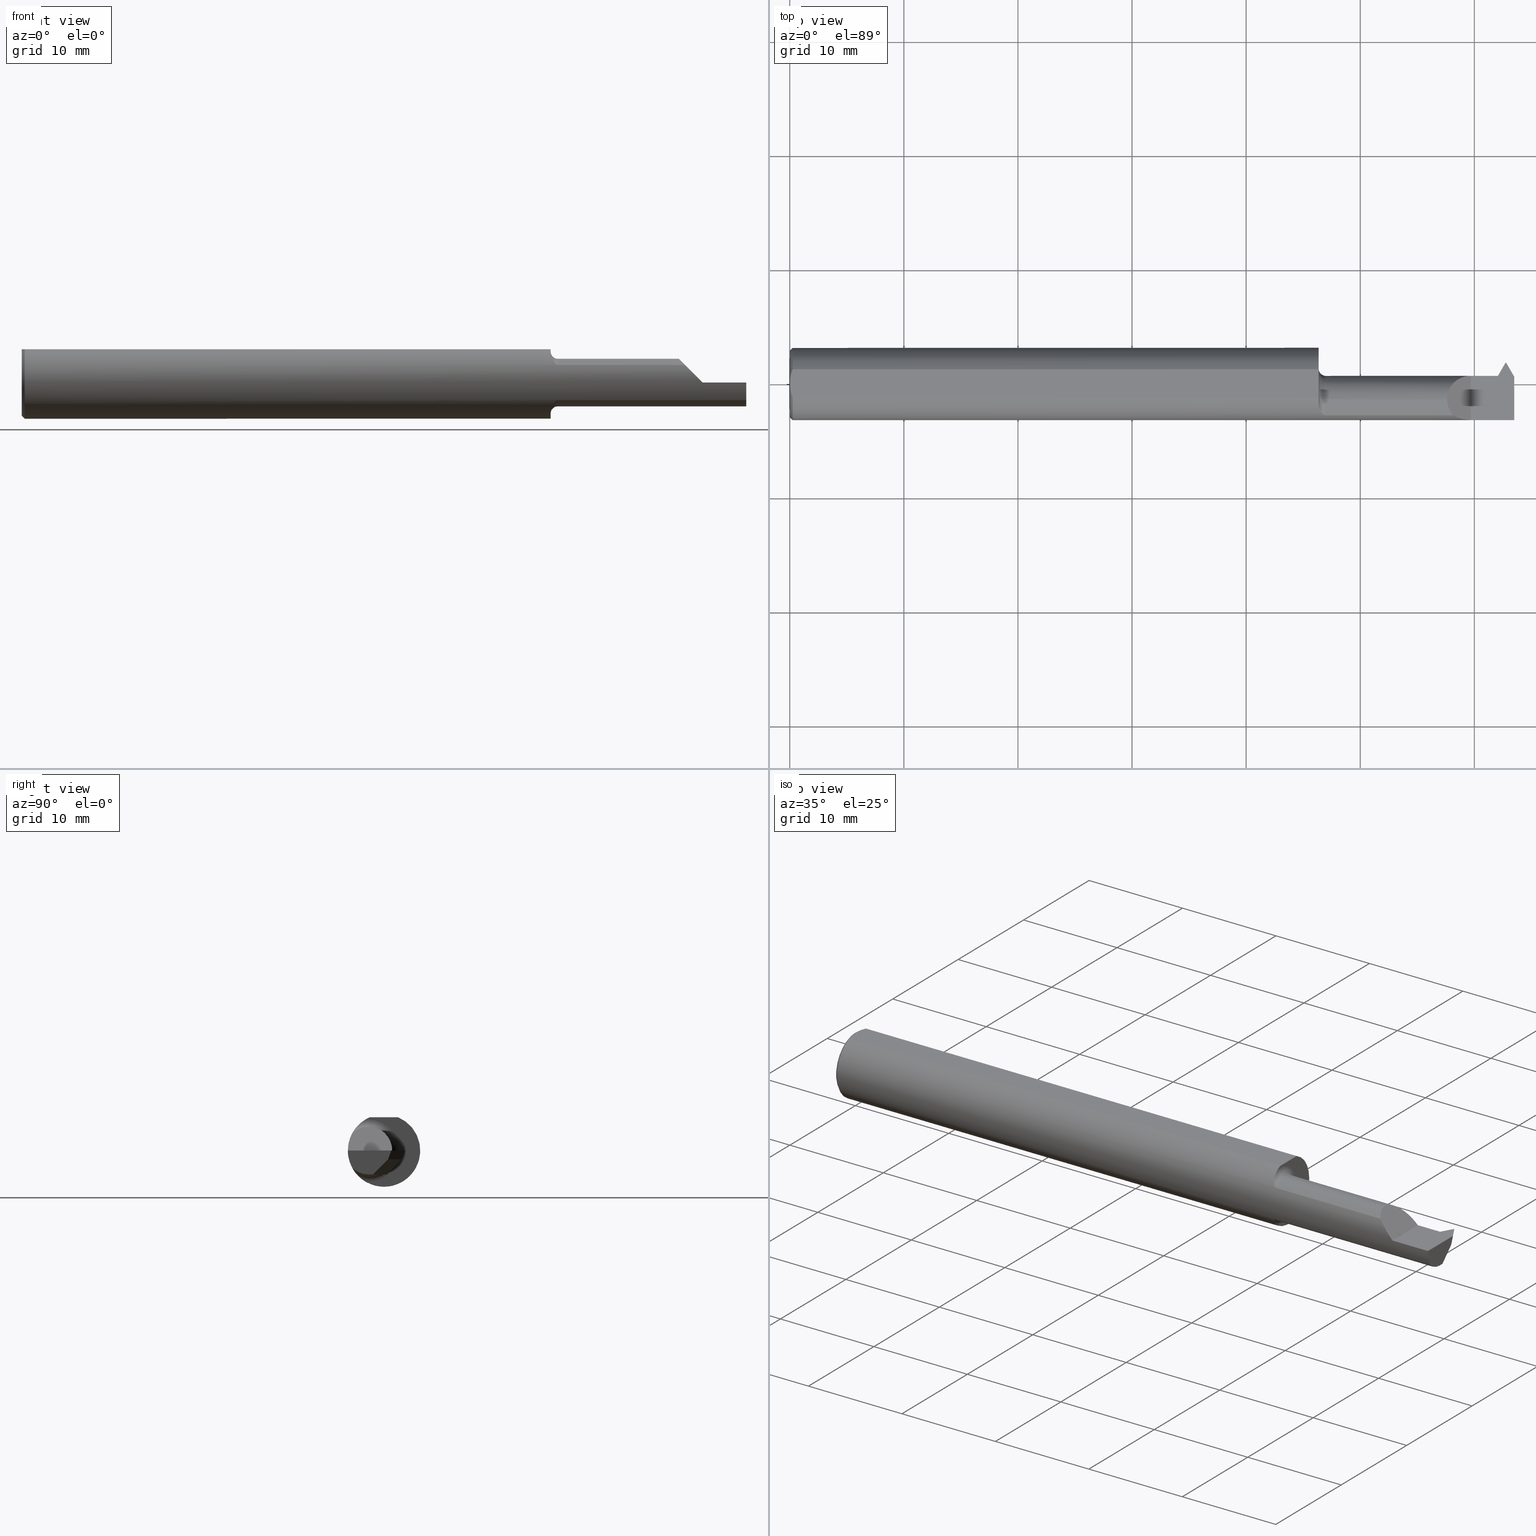
[diagram: canonical four-view strip — front | top / right | iso, engineering-drawing reading convention]
A machine part, canonical four-view strip (front | top / right | iso — engineering-drawing reading convention). The complete STEP part file that produces these views, byte-faithful:
ISO-10303-21;
HEADER;
FILE_DESCRIPTION (( 'STEP AP203' ),
    '1' );
FILE_NAME ('230235-TT200600.STEP',
    '2025-04-24T22:32:49',
    ( '' ),
    ( '' ),
    'SwSTEP 2.0',
    'SolidWorks 2024',
    '' );
FILE_SCHEMA (( 'CONFIG_CONTROL_DESIGN' ));
ENDSEC;

DATA;
#1 = DIRECTION ( 'NONE',  ( 1.000000000000000000, 0.000000000000000000, 0.000000000000000000 ) ) ;
#2 =( BOUNDED_CURVE ( )  B_SPLINE_CURVE ( 3, ( #417, #848, #226, #701 ),
 .UNSPECIFIED., .F., .T. ) 
 B_SPLINE_CURVE_WITH_KNOTS ( ( 4, 4 ),
 ( 5.541836096877574391, 6.283185307179586232 ),
 .UNSPECIFIED. ) 
 CURVE ( )  GEOMETRIC_REPRESENTATION_ITEM ( )  RATIONAL_B_SPLINE_CURVE ( ( 1.000000000000000000, 0.9547221238960329481, 0.9547221238960329481, 1.000000000000000000 ) ) 
 REPRESENTATION_ITEM ( '' )  );
#3 = DIRECTION ( 'NONE',  ( -0.1021978390768673584, 0.1770118497048816797, 0.9788883525469465052 ) ) ;
#4 = VERTEX_POINT ( 'NONE', #409 ) ;
#5 = CARTESIAN_POINT ( 'NONE',  ( 2.472290033225403416, 0.06223089297200616599, -0.03000000000000796474 ) ) ;
#6 = DIRECTION ( 'NONE',  ( -0.4999999999999968359, 0.8660254037844405950, 0.000000000000000000 ) ) ;
#7 = ORIENTED_EDGE ( 'NONE', *, *, #842, .F. ) ;
#8 = FACE_OUTER_BOUND ( 'NONE', #280, .T. ) ;
#9 = DIRECTION ( 'NONE',  ( 0.4999999999999948375, -0.8660254037844417052, 0.000000000000000000 ) ) ;
#10 = AXIS2_PLACEMENT_3D ( 'NONE', #362, #349, #149 ) ;
#11 = VECTOR ( 'NONE', #876, 39.37007874015748854 ) ;
#12 = ORIENTED_EDGE ( 'NONE', *, *, #186, .F. ) ;
#13 = CARTESIAN_POINT ( 'NONE',  ( 0.000000000000000000, 0.000000000000000000, 0.000000000000000000 ) ) ;
#14 = LINE ( 'NONE', #766, #256 ) ;
#15 = CARTESIAN_POINT ( 'NONE',  ( 1.839872773867706979, -0.1060950243526075920, 0.06584904124472092113 ) ) ;
#16 = EDGE_CURVE ( 'NONE', #883, #255, #676, .T. ) ;
#17 = ORIENTED_EDGE ( 'NONE', *, *, #63, .F. ) ;
#18 = DIRECTION ( 'NONE',  ( 0.1005834662396478951, 0.000000000000000000, -0.9949286237309776793 ) ) ;
#19 = PLANE ( 'NONE',  #875 ) ;
#20 = EDGE_LOOP ( 'NONE', ( #526, #354, #451 ) ) ;
#21 = LOCAL_TIME ( 15, 32, 49.00000000000000000, #624 ) ;
#22 = DIRECTION ( 'NONE',  ( 0.000000000000000000, 0.000000000000000000, 1.000000000000000000 ) ) ;
#23 = FACE_OUTER_BOUND ( 'NONE', #220, .T. ) ;
#24 = AXIS2_PLACEMENT_3D ( 'NONE', #581, #446, #571 ) ;
#25 = ORIENTED_EDGE ( 'NONE', *, *, #106, .F. ) ;
#26 = EDGE_CURVE ( 'NONE', #517, #284, #748, .T. ) ;
#27 = AXIS2_PLACEMENT_3D ( 'NONE', #262, #118, #528 ) ;
#28 = EDGE_CURVE ( 'NONE', #530, #433, #57, .T. ) ;
#29 = CARTESIAN_POINT ( 'NONE',  ( 2.469749999999999890, 0.07314999999999999281, 0.000000000000000000 ) ) ;
#30 = VERTEX_POINT ( 'NONE', #826 ) ;
#31 = DIRECTION ( 'NONE',  ( 0.4999999999999968359, -0.8660254037844403729, 0.000000000000000000 ) ) ;
#32 = EDGE_CURVE ( 'NONE', #207, #96, #373, .T. ) ;
#33 = CARTESIAN_POINT ( 'NONE',  ( 2.301965512114593437, 0.02814999999999997018, 0.04803448788540625597 ) ) ;
#34 =( BOUNDED_CURVE ( )  B_SPLINE_CURVE ( 3, ( #751, #121, #49, #590 ),
 .UNSPECIFIED., .F., .F. ) 
 B_SPLINE_CURVE_WITH_KNOTS ( ( 4, 4 ),
 ( 1.213003830136025529, 1.570796326794863029 ),
 .UNSPECIFIED. ) 
 CURVE ( )  GEOMETRIC_REPRESENTATION_ITEM ( )  RATIONAL_B_SPLINE_CURVE ( ( 1.000000000000000000, 0.9893604650975271753, 0.9893604650975271753, 1.000000000000000000 ) ) 
 REPRESENTATION_ITEM ( '' )  );
#35 = CARTESIAN_POINT ( 'NONE',  ( 2.451234871023850292, -0.007219850294038637935, -0.06745093875106314418 ) ) ;
#36 = DIRECTION ( 'NONE',  ( 0.000000000000000000, 0.000000000000000000, -1.000000000000000000 ) ) ;
#37 = ORIENTED_EDGE ( 'NONE', *, *, #91, .F. ) ;
#38 = VECTOR ( 'NONE', #707, 39.37007874015748854 ) ;
#39 = CARTESIAN_POINT ( 'NONE',  ( 2.446901295964723833, 0.02229442029541566297, -0.03043069598078727497 ) ) ;
#40 = DIRECTION ( 'NONE',  ( 0.000000000000000000, 0.000000000000000000, 1.000000000000000000 ) ) ;
#41 = VERTEX_POINT ( 'NONE', #269 ) ;
#42 = LINE ( 'NONE', #319, #511 ) ;
#43 = DIRECTION ( 'NONE',  ( -0.000000000000000000, 1.000000000000000000, 1.224646799147353207E-16 ) ) ;
#44 = ORIENTED_EDGE ( 'NONE', *, *, #116, .F. ) ;
#45 = ORIENTED_EDGE ( 'NONE', *, *, #537, .T. ) ;
#46 = FACE_OUTER_BOUND ( 'NONE', #363, .T. ) ;
#47 = CARTESIAN_POINT ( 'NONE',  ( 2.446951323323887095, 0.02223654036413785090, -0.03057522583990424439 ) ) ;
#48 = ORIENTED_EDGE ( 'NONE', *, *, #502, .F. ) ;
#49 = CARTESIAN_POINT ( 'NONE',  ( 2.431252431409448800, 0.02814999999999999447, -0.009832190419034429751 ) ) ;
#50 = CIRCLE ( 'NONE', #380, 0.1248500000000000026 ) ;
#51 = EDGE_CURVE ( 'NONE', #784, #386, #187, .T. ) ;
#52 = CARTESIAN_POINT ( 'NONE',  ( 2.472249999999999837, 0.07314999999999999281, 0.000000000000000000 ) ) ;
#53 = AXIS2_PLACEMENT_3D ( 'NONE', #242, #786, #501 ) ;
#54 = CARTESIAN_POINT ( 'NONE',  ( 1.831574539397730073, -0.09671433139090024333, -0.07916850176471032507 ) ) ;
#55 = PLANE ( 'NONE',  #724 ) ;
#56 = DIRECTION ( 'NONE',  ( -1.000000000000000000, -0.000000000000000000, -0.000000000000000000 ) ) ;
#57 = LINE ( 'NONE', #134, #327 ) ;
#58 = ORIENTED_EDGE ( 'NONE', *, *, #26, .F. ) ;
#59 = DIRECTION ( 'NONE',  ( -1.000000000000000000, -0.000000000000000000, -0.000000000000000000 ) ) ;
#60 = LINE ( 'NONE', #456, #808 ) ;
#61 = CARTESIAN_POINT ( 'NONE',  ( 1.846893101175498098, -0.1092232590529246400, -0.06047976671464364712 ) ) ;
#62 = EDGE_CURVE ( 'NONE', #386, #146, #2, .T. ) ;
#63 = EDGE_CURVE ( 'NONE', #893, #784, #247, .T. ) ;
#64 = ORIENTED_EDGE ( 'NONE', *, *, #639, .F. ) ;
#65 = APPROVAL_ROLE ( '' ) ;
#66 = CARTESIAN_POINT ( 'NONE',  ( 1.850000000000000311, -0.05385000000000006448, 0.000000000000000000 ) ) ;
#67 = AXIS2_PLACEMENT_3D ( 'NONE', #263, #195, #450 ) ;
#68 = LINE ( 'NONE', #499, #38 ) ;
#69 = AXIS2_PLACEMENT_3D ( 'NONE', #695, #428, #281 ) ;
#70 = EDGE_CURVE ( 'NONE', #562, #78, #584, .T. ) ;
#71 = ORIENTED_EDGE ( 'NONE', *, *, #289, .T. ) ;
#72 = DIRECTION ( 'NONE',  ( 0.000000000000000000, 0.000000000000000000, 1.000000000000000000 ) ) ;
#73 = CARTESIAN_POINT ( 'NONE',  ( 1.838167052038309990, -0.1047260336402100200, 0.06802262465471388408 ) ) ;
#74 = ORIENTED_EDGE ( 'NONE', *, *, #906, .T. ) ;
#75 =( LENGTH_UNIT ( ) NAMED_UNIT ( * ) SI_UNIT ( $, .METRE. ) );
#76 = CARTESIAN_POINT ( 'NONE',  ( 2.454384911711299466, -2.391462833681091471, 0.3325315713287214092 ) ) ;
#77 = CARTESIAN_POINT ( 'NONE',  ( 2.472249999999999837, 0.07314999999999999281, 0.000000000000000000 ) ) ;
#78 = VERTEX_POINT ( 'NONE', #853 ) ;
#79 = PERSON_AND_ORGANIZATION ( #813, #408 ) ;
#80 = DIRECTION ( 'NONE',  ( 0.000000000000000000, 0.000000000000000000, -1.000000000000000000 ) ) ;
#81 = PRODUCT_DEFINITION ( 'UNKNOWN', '', #644, #406 ) ;
#82 = CARTESIAN_POINT ( 'NONE',  ( 2.267999999999999350, -0.05385000000000006448, 0.08200000000000005895 ) ) ;
#83 = VECTOR ( 'NONE', #589, 39.37007874015748854 ) ;
#84 = ORIENTED_EDGE ( 'NONE', *, *, #545, .T. ) ;
#85 = PLANE ( 'NONE',  #600 ) ;
#86 = CARTESIAN_POINT ( 'NONE',  ( 0.000000000000000000, 0.000000000000000000, 0.1148499999999999521 ) ) ;
#87 = VERTEX_POINT ( 'NONE', #779 ) ;
#88 = LINE ( 'NONE', #367, #738 ) ;
#89 = CARTESIAN_POINT ( 'NONE',  ( 1.825000000000000400, -0.05385000000000006448, 0.000000000000000000 ) ) ;
#90 = EDGE_CURVE ( 'NONE', #30, #164, #68, .T. ) ;
#91 = EDGE_CURVE ( 'NONE', #207, #393, #344, .T. ) ;
#92 = ORIENTED_EDGE ( 'NONE', *, *, #436, .T. ) ;
#93 = DIRECTION ( 'NONE',  ( -1.000000000000000000, -0.000000000000000000, -0.000000000000000000 ) ) ;
#94 = DIRECTION ( 'NONE',  ( 1.000000000000000000, 0.000000000000000000, 0.000000000000000000 ) ) ;
#95 = VECTOR ( 'NONE', #216, 39.37007874015748143 ) ;
#96 = VERTEX_POINT ( 'NONE', #86 ) ;
#97 = CIRCLE ( 'NONE', #53, 0.1069999999999999979 ) ;
#98 = EDGE_CURVE ( 'NONE', #669, #284, #858, .T. ) ;
#99 = CARTESIAN_POINT ( 'NONE',  ( 2.446901295964723833, 0.02272511627620293906, -0.02999999999999999889 ) ) ;
#100 = DIRECTION ( 'NONE',  ( 0.4999999999999962252, 0.8660254037844408170, 0.000000000000000000 ) ) ;
#101 = CARTESIAN_POINT ( 'NONE',  ( 1.825000000000000400, 0.04895916665957469188, 0.1148499999999999521 ) ) ;
#102 = DIRECTION ( 'NONE',  ( -1.000000000000000000, 0.000000000000000000, -0.000000000000000000 ) ) ;
#103 = ORIENTED_EDGE ( 'NONE', *, *, #834, .F. ) ;
#104 = CARTESIAN_POINT ( 'NONE',  ( 1.825000000000000400, 0.1248500000000000026, 0.1148499999999999521 ) ) ;
#105 = FACE_OUTER_BOUND ( 'NONE', #404, .T. ) ;
#106 = EDGE_CURVE ( 'NONE', #202, #598, #769, .T. ) ;
#107 = AXIS2_PLACEMENT_3D ( 'NONE', #89, #435, #119 ) ;
#108 = ORIENTED_EDGE ( 'NONE', *, *, #311, .F. ) ;
#109 = DIRECTION ( 'NONE',  ( 0.000000000000000000, -0.7071067811865474617, -0.7071067811865474617 ) ) ;
#110 = DIRECTION ( 'NONE',  ( 0.000000000000000000, 0.000000000000000000, -1.000000000000000000 ) ) ;
#111 = ORIENTED_EDGE ( 'NONE', *, *, #531, .T. ) ;
#112 = DIRECTION ( 'NONE',  ( 0.000000000000000000, 0.000000000000000000, 1.000000000000000000 ) ) ;
#113 = LINE ( 'NONE', #752, #710 ) ;
#114 = EDGE_LOOP ( 'NONE', ( #143, #772, #182, #366, #232 ) ) ;
#115 = ADVANCED_FACE ( 'NONE', ( #486 ), #19, .F. ) ;
#116 = EDGE_CURVE ( 'NONE', #284, #661, #567, .T. ) ;
#117 = ORIENTED_EDGE ( 'NONE', *, *, #775, .F. ) ;
#118 = DIRECTION ( 'NONE',  ( -1.224646799147352961E-16, 0.000000000000000000, -1.000000000000000000 ) ) ;
#119 = DIRECTION ( 'NONE',  ( 0.000000000000000000, 0.000000000000000000, 1.000000000000000000 ) ) ;
#120 = ORIENTED_EDGE ( 'NONE', *, *, #712, .T. ) ;
#121 = CARTESIAN_POINT ( 'NONE',  ( 2.429502856586511328, 0.02640042517706307768, -0.01950746593837224957 ) ) ;
#122 = CARTESIAN_POINT ( 'NONE',  ( 2.446901295964723833, -0.02341930401921279992, -0.07614442029541573786 ) ) ;
#123 = AXIS2_PLACEMENT_3D ( 'NONE', #167, #723, #300 ) ;
#124 = ORIENTED_EDGE ( 'NONE', *, *, #219, .T. ) ;
#125 = APPLICATION_CONTEXT ( 'configuration controlled 3d designs of mechanical parts and assemblies' ) ;
#126 = ORIENTED_EDGE ( 'NONE', *, *, #90, .F. ) ;
#127 = DIRECTION ( 'NONE',  ( 0.000000000000000000, -0.9396926207859107594, 0.3420201433256623291 ) ) ;
#128 = EDGE_CURVE ( 'NONE', #418, #791, #353, .T. ) ;
#129 = FACE_OUTER_BOUND ( 'NONE', #224, .T. ) ;
#130 = ORIENTED_EDGE ( 'NONE', *, *, #229, .T. ) ;
#131 = ORIENTED_EDGE ( 'NONE', *, *, #866, .F. ) ;
#132 = PERSON_AND_ORGANIZATION ( #813, #408 ) ;
#133 = FACE_OUTER_BOUND ( 'NONE', #173, .T. ) ;
#134 = CARTESIAN_POINT ( 'NONE',  ( 2.433030381068565173, 0.02814999999999999447, -3.269571062426234743E-34 ) ) ;
#135 = EDGE_CURVE ( 'NONE', #78, #87, #159, .T. ) ;
#136 = LOCAL_TIME ( 15, 32, 49.00000000000000000, #272 ) ;
#137 = ORIENTED_EDGE ( 'NONE', *, *, #311, .T. ) ;
#138 =( NAMED_UNIT ( * ) PLANE_ANGLE_UNIT ( ) SI_UNIT ( $, .RADIAN. ) );
#139 = DIRECTION ( 'NONE',  ( -0.4999999999999968359, 0.000000000000000000, -0.8660254037844405950 ) ) ;
#140 = AXIS2_PLACEMENT_3D ( 'NONE', #509, #720, #649 ) ;
#141 = CARTESIAN_POINT ( 'NONE',  ( 2.541472960791670843, -0.1095974525891199175, -0.08200000000000007283 ) ) ;
#142 = AXIS2_PLACEMENT_3D ( 'NONE', #625, #847, #636 ) ;
#143 = ORIENTED_EDGE ( 'NONE', *, *, #91, .T. ) ;
#144 = CARTESIAN_POINT ( 'NONE',  ( 2.454384911711299466, -2.391462833681091471, 0.3325315713287214092 ) ) ;
#145 = CARTESIAN_POINT ( 'NONE',  ( 1.826996939049468249, -0.08458882217984113605, 0.09202120527030360764 ) ) ;
#146 = VERTEX_POINT ( 'NONE', #82 ) ;
#147 = COORDINATED_UNIVERSAL_TIME_OFFSET ( 8, 0, .BEHIND. ) ;
#148 = CARTESIAN_POINT ( 'NONE',  ( 1.850000000000000311, -0.05385000000000006448, 0.08200000000000005895 ) ) ;
#149 = DIRECTION ( 'NONE',  ( 0.000000000000000000, 0.000000000000000000, 1.000000000000000000 ) ) ;
#150 =( BOUNDED_CURVE ( )  B_SPLINE_CURVE ( 3, ( #375, #377, #653, #35 ),
 .UNSPECIFIED., .F., .F. ) 
 B_SPLINE_CURVE_WITH_KNOTS ( ( 4, 4 ),
 ( 2.736394332561751686, 2.961070831367622169 ),
 .UNSPECIFIED. ) 
 CURVE ( )  GEOMETRIC_REPRESENTATION_ITEM ( )  RATIONAL_B_SPLINE_CURVE ( ( 1.000000000000000000, 0.9957977946417078119, 0.9957977946417078119, 1.000000000000000000 ) ) 
 REPRESENTATION_ITEM ( '' )  );
#151 = VERTEX_POINT ( 'NONE', #627 ) ;
#152 = PERSON_AND_ORGANIZATION ( #813, #408 ) ;
#153 = CARTESIAN_POINT ( 'NONE',  ( 0.000000000000000000, 0.000000000000000000, 0.000000000000000000 ) ) ;
#154 = CARTESIAN_POINT ( 'NONE',  ( 1.824999999999999734, -0.07054241148902920533, 0.1031911175192886804 ) ) ;
#155 = AXIS2_PLACEMENT_3D ( 'NONE', #172, #102, #239 ) ;
#156 = ORIENTED_EDGE ( 'NONE', *, *, #878, .F. ) ;
#157 = CARTESIAN_POINT ( 'NONE',  ( 2.452452630173280301, -0.02103119801956392781, -0.07699899284797022403 ) ) ;
#158 = EDGE_CURVE ( 'NONE', #202, #669, #521, .T. ) ;
#159 = LINE ( 'NONE', #432, #691 ) ;
#160 = ORIENTED_EDGE ( 'NONE', *, *, #411, .F. ) ;
#161 = ADVANCED_BREP_SHAPE_REPRESENTATION ( '230235-TT200600', ( #198, #532 ), #464 ) ;
#162 = CARTESIAN_POINT ( 'NONE',  ( 1.825000000000000400, -0.06535139275766017886, -0.1063800637555460532 ) ) ;
#163 = EDGE_CURVE ( 'NONE', #164, #755, #767, .T. ) ;
#164 = VERTEX_POINT ( 'NONE', #774 ) ;
#165 = COORDINATED_UNIVERSAL_TIME_OFFSET ( 8, 0, .BEHIND. ) ;
#166 = VECTOR ( 'NONE', #533, 39.37007874015748143 ) ;
#167 = CARTESIAN_POINT ( 'NONE',  ( 0.000000000000000000, 0.000000000000000000, 0.000000000000000000 ) ) ;
#168 = DIRECTION ( 'NONE',  ( -0.7071067811865511255, 0.000000000000000000, 0.7071067811865439090 ) ) ;
#169 = VECTOR ( 'NONE', #809, 39.37007874015748143 ) ;
#170 = VECTOR ( 'NONE', #807, 39.37007874015748143 ) ;
#171 = DIRECTION ( 'NONE',  ( 0.000000000000000000, 0.000000000000000000, 1.000000000000000000 ) ) ;
#172 = CARTESIAN_POINT ( 'NONE',  ( 2.500000000000000000, 0.000000000000000000, 0.000000000000000000 ) ) ;
#173 = EDGE_LOOP ( 'NONE', ( #902, #729, #395, #193, #392, #17, #48, #37, #832, #199, #277, #44, #58 ) ) ;
#174 = EDGE_CURVE ( 'NONE', #307, #587, #421, .T. ) ;
#175 = CARTESIAN_POINT ( 'NONE',  ( 2.752883550275615487, 0.1248500000000000026, 0.1148499999999999521 ) ) ;
#176 = DIRECTION ( 'NONE',  ( -1.000000000000000000, -0.000000000000000000, -0.000000000000000000 ) ) ;
#177 = ORIENTED_EDGE ( 'NONE', *, *, #98, .T. ) ;
#178 = PLANE ( 'NONE',  #241 ) ;
#179 = CC_DESIGN_APPROVAL ( #822, ( #81 ) ) ;
#180 = CARTESIAN_POINT ( 'NONE',  ( 2.144015190534282578, -0.1092232590529246400, -0.06047976671464362630 ) ) ;
#181 = ORIENTED_EDGE ( 'NONE', *, *, #16, .F. ) ;
#182 = ORIENTED_EDGE ( 'NONE', *, *, #438, .T. ) ;
#183 = AXIS2_PLACEMENT_3D ( 'NONE', #595, #189, #384 ) ;
#184 = CARTESIAN_POINT ( 'NONE',  ( 2.500000000000000000, 0.000000000000000000, -0.08200000000000007283 ) ) ;
#185 = CARTESIAN_POINT ( 'NONE',  ( 0.01000000000000014939, 0.04895916665957469188, 0.1148499999999999521 ) ) ;
#186 = EDGE_CURVE ( 'NONE', #151, #883, #557, .T. ) ;
#187 = LINE ( 'NONE', #457, #394 ) ;
#188 = ADVANCED_FACE ( 'NONE', ( #105 ), #301, .F. ) ;
#189 = DIRECTION ( 'NONE',  ( -1.000000000000000000, -0.000000000000000000, -0.000000000000000000 ) ) ;
#190 = DIRECTION ( 'NONE',  ( 0.001253963230750363344, 0.3420198744252525014, 0.9396918819881070473 ) ) ;
#191 = ORIENTED_EDGE ( 'NONE', *, *, #740, .F. ) ;
#192 = ADVANCED_FACE ( 'NONE', ( #313 ), #728, .F. ) ;
#193 = ORIENTED_EDGE ( 'NONE', *, *, #740, .T. ) ;
#194 = CARTESIAN_POINT ( 'NONE',  ( 1.825000000000000400, 0.02295711951837044185, -0.02871700526327145009 ) ) ;
#195 = DIRECTION ( 'NONE',  ( -1.000000000000000000, -0.000000000000000000, -0.000000000000000000 ) ) ;
#196 = APPROVAL_PERSON_ORGANIZATION ( #553, #822, #419 ) ;
#197 = CARTESIAN_POINT ( 'NONE',  ( 1.839871114993082646, -0.1060941439957362731, -0.06585051326907723213 ) ) ;
#198 = MANIFOLD_SOLID_BREP ( 'Cut-Sweep1', #722 ) ;
#199 = ORIENTED_EDGE ( 'NONE', *, *, #16, .T. ) ;
#200 = CARTESIAN_POINT ( 'NONE',  ( 1.825000000000000400, -0.06535139275766017886, 0.1063800637555460532 ) ) ;
#201 = AXIS2_PLACEMENT_3D ( 'NONE', #575, #176, #867 ) ;
#202 = VERTEX_POINT ( 'NONE', #862 ) ;
#203 = ORIENTED_EDGE ( 'NONE', *, *, #318, .F. ) ;
#204 = APPROVAL_STATUS ( 'not_yet_approved' ) ;
#205 = ADVANCED_FACE ( 'NONE', ( #376 ), #374, .F. ) ;
#206 = LINE ( 'NONE', #706, #614 ) ;
#207 = VERTEX_POINT ( 'NONE', #448 ) ;
#208 = EDGE_LOOP ( 'NONE', ( #334, #426, #828, #814, #539, #203, #823, #422 ) ) ;
#209 = FACE_OUTER_BOUND ( 'NONE', #863, .T. ) ;
#210 =( BOUNDED_CURVE ( )  B_SPLINE_CURVE ( 3, ( #657, #315, #157, #715 ),
 .UNSPECIFIED., .F., .T. ) 
 B_SPLINE_CURVE_WITH_KNOTS ( ( 4, 4 ),
 ( 3.320488901919212310, 3.925365243094490086 ),
 .UNSPECIFIED. ) 
 CURVE ( )  GEOMETRIC_REPRESENTATION_ITEM ( )  RATIONAL_B_SPLINE_CURVE ( ( 1.000000000000000000, 0.9697420810547345837, 0.9697420810547345837, 1.000000000000000000 ) ) 
 REPRESENTATION_ITEM ( '' )  );
#211 = DIRECTION ( 'NONE',  ( -1.000000000000000000, -0.000000000000000000, -0.000000000000000000 ) ) ;
#212 = EDGE_LOOP ( 'NONE', ( #681, #304, #859, #45, #610, #572 ) ) ;
#213 = DATE_TIME_ROLE ( 'creation_date' ) ;
#214 = CYLINDRICAL_SURFACE ( 'NONE', #754, 0.1248500000000000026 ) ;
#215 = CIRCLE ( 'NONE', #302, 0.1148500000000000076 ) ;
#216 = DIRECTION ( 'NONE',  ( 4.614289212894789412E-15, -0.7071067811865434649, -0.7071067811865515695 ) ) ;
#217 = CIRCLE ( 'NONE', #359, 0.1248500000000000026 ) ;
#218 =( BOUNDED_CURVE ( )  B_SPLINE_CURVE ( 3, ( #674, #47, #758, #817 ),
 .UNSPECIFIED., .F., .F. ) 
 B_SPLINE_CURVE_WITH_KNOTS ( ( 4, 4 ),
 ( 3.543943011109390362, 3.546790974617834102 ),
 .UNSPECIFIED. ) 
 CURVE ( )  GEOMETRIC_REPRESENTATION_ITEM ( )  RATIONAL_B_SPLINE_CURVE ( ( 1.000000000000000000, 0.9999993240921020154, 0.9999993240921020154, 1.000000000000000000 ) ) 
 REPRESENTATION_ITEM ( '' )  );
#219 = EDGE_CURVE ( 'NONE', #151, #96, #215, .T. ) ;
#220 = EDGE_LOOP ( 'NONE', ( #613, #854, #514, #615 ) ) ;
#221 = DATE_AND_TIME ( #709, #136 ) ;
#222 = DIRECTION ( 'NONE',  ( 4.558778061663563139E-15, 0.7071067811865435759, 0.7071067811865514585 ) ) ;
#223 = CARTESIAN_POINT ( 'NONE',  ( 1.846904167968482779, -0.1092232590529397113, 0.06047976671461655768 ) ) ;
#224 = EDGE_LOOP ( 'NONE', ( #764, #92, #500, #383 ) ) ;
#225 = PERSON_AND_ORGANIZATION ( #813, #408 ) ;
#226 = CARTESIAN_POINT ( 'NONE',  ( 2.267999999999999350, -0.07459183475902475546, 0.08200000000000007283 ) ) ;
#227 = ORIENTED_EDGE ( 'NONE', *, *, #259, .T. ) ;
#228 = ADVANCED_FACE ( 'NONE', ( #23 ), #538, .T. ) ;
#229 = EDGE_CURVE ( 'NONE', #601, #714, #536, .T. ) ;
#230 = LINE ( 'NONE', #790, #382 ) ;
#231 = VECTOR ( 'NONE', #445, 39.37007874015748143 ) ;
#232 = ORIENTED_EDGE ( 'NONE', *, *, #32, .F. ) ;
#233 = CARTESIAN_POINT ( 'NONE',  ( 2.350000000000000089, -0.1248500000000000165, 1.836970198721029441E-17 ) ) ;
#234 = LINE ( 'NONE', #659, #254 ) ;
#235 = ORIENTED_EDGE ( 'NONE', *, *, #757, .F. ) ;
#236 = DIRECTION ( 'NONE',  ( -0.4999999999999898970, 0.000000000000000000, 0.8660254037844443697 ) ) ;
#237 = LINE ( 'NONE', #652, #843 ) ;
#238 = CARTESIAN_POINT ( 'NONE',  ( 2.308130552538913527, -0.1195282781184591331, 0.04186944746108606924 ) ) ;
#239 = DIRECTION ( 'NONE',  ( -0.000000000000000000, 0.000000000000000000, 1.000000000000000000 ) ) ;
#240 = ADVANCED_FACE ( 'NONE', ( #643 ), #877, .F. ) ;
#241 = AXIS2_PLACEMENT_3D ( 'NONE', #746, #329, #524 ) ;
#242 = CARTESIAN_POINT ( 'NONE',  ( 1.825000000000000400, -0.05385000000000006448, 0.000000000000000000 ) ) ;
#243 = CARTESIAN_POINT ( 'NONE',  ( 0.000000000000000000, 0.000000000000000000, -0.1148500000000000076 ) ) ;
#244 = CARTESIAN_POINT ( 'NONE',  ( 2.446901295964723833, 0.02272511627620293906, -0.02999999999999999889 ) ) ;
#245 = DIRECTION ( 'NONE',  ( -1.000000000000000000, -0.000000000000000000, -0.000000000000000000 ) ) ;
#246 = ORIENTED_EDGE ( 'NONE', *, *, #712, .F. ) ;
#247 = B_SPLINE_CURVE_WITH_KNOTS ( 'NONE', 3,
 ( #547, #154, #551, #145, #293, #633, #836, #73, #15, #696, #223, #494 ),
 .UNSPECIFIED., .F., .F.,
 ( 4, 2, 2, 2, 2, 4 ),
 ( 3.030490085919073487E-05, 0.0004889370798616852424, 0.0009475692588641792180, 0.001406201437866673410, 0.001635517527367919910, 0.001864833616869166410 ),
 .UNSPECIFIED. ) ;
#248 = EDGE_CURVE ( 'NONE', #791, #326, #237, .T. ) ;
#249 = CARTESIAN_POINT ( 'NONE',  ( 1.850000000000000311, -0.05385000000000006448, 0.000000000000000000 ) ) ;
#250 = AXIS2_PLACEMENT_3D ( 'NONE', #249, #899, #112 ) ;
#251 = EDGE_CURVE ( 'NONE', #791, #755, #234, .T. ) ;
#252 = CARTESIAN_POINT ( 'NONE',  ( 2.452918392213564669, -0.01885296730677184229, -0.08200000000000011446 ) ) ;
#253 = CARTESIAN_POINT ( 'NONE',  ( 0.01000000000000014939, -0.04895916665957469188, 0.1148499999999999521 ) ) ;
#254 = VECTOR ( 'NONE', #306, 39.37007874015748143 ) ;
#255 = VERTEX_POINT ( 'NONE', #798 ) ;
#256 = VECTOR ( 'NONE', #689, 39.37007874015748143 ) ;
#257 = DIRECTION ( 'NONE',  ( 0.000000000000000000, -0.7071067811865433539, -0.7071067811865514585 ) ) ;
#258 = CARTESIAN_POINT ( 'NONE',  ( 1.850000000000000311, -0.05385000000000006448, 0.000000000000000000 ) ) ;
#259 = EDGE_CURVE ( 'NONE', #96, #151, #889, .T. ) ;
#260 = ORIENTED_EDGE ( 'NONE', *, *, #638, .F. ) ;
#261 = ORIENTED_EDGE ( 'NONE', *, *, #174, .F. ) ;
#262 = CARTESIAN_POINT ( 'NONE',  ( 2.500000000000000000, -0.2500000000000000555, 0.000000000000000000 ) ) ;
#263 = CARTESIAN_POINT ( 'NONE',  ( 2.446901295964723833, -0.05385000000000006448, 0.000000000000000000 ) ) ;
#264 = VERTEX_POINT ( 'NONE', #507 ) ;
#265 = EDGE_LOOP ( 'NONE', ( #619, #191, #818, #495 ) ) ;
#266 = CARTESIAN_POINT ( 'NONE',  ( 2.638030381068564800, -0.05385000000000006448, -0.08200000000000007283 ) ) ;
#267 = CARTESIAN_POINT ( 'NONE',  ( 2.433030381068565173, 0.02814999999999999447, 0.000000000000000000 ) ) ;
#268 = SECURITY_CLASSIFICATION ( '', '', #491 ) ;
#269 = CARTESIAN_POINT ( 'NONE',  ( 2.500000000000000000, -0.1248500000000000026, 0.000000000000000000 ) ) ;
#270 = EDGE_CURVE ( 'NONE', #146, #750, #873, .T. ) ;
#271 = ORIENTED_EDGE ( 'NONE', *, *, #90, .T. ) ;
#272 = COORDINATED_UNIVERSAL_TIME_OFFSET ( 8, 0, .BEHIND. ) ;
#273 = AXIS2_PLACEMENT_3D ( 'NONE', #258, #895, #684 ) ;
#274 = AXIS2_PLACEMENT_3D ( 'NONE', #66, #865, #22 ) ;
#275 = CARTESIAN_POINT ( 'NONE',  ( -8.474402044719765530E-17, 0.01683325733139112365, 0.1148499999999999521 ) ) ;
#276 = ORIENTED_EDGE ( 'NONE', *, *, #270, .T. ) ;
#277 = ORIENTED_EDGE ( 'NONE', *, *, #438, .F. ) ;
#278 = CARTESIAN_POINT ( 'NONE',  ( 2.427837500586933484, 0.02295711951836859263, -0.02871700526327635242 ) ) ;
#279 = CARTESIAN_POINT ( 'NONE',  ( 2.446837138557887759, 0.02271536081068179988, -0.02936361829919950650 ) ) ;
#280 = EDGE_LOOP ( 'NONE', ( #565, #339, #400, #439 ) ) ;
#281 = DIRECTION ( 'NONE',  ( 0.000000000000000000, 0.000000000000000000, 1.000000000000000000 ) ) ;
#282 = EDGE_CURVE ( 'NONE', #601, #41, #50, .T. ) ;
#283 = DIRECTION ( 'NONE',  ( 0.000000000000000000, 0.000000000000000000, -1.000000000000000000 ) ) ;
#284 = VERTEX_POINT ( 'NONE', #162 ) ;
#285 = CARTESIAN_POINT ( 'NONE',  ( 2.451234871023850292, -0.007219850294038637935, -0.06745093875106314418 ) ) ;
#286 = AXIS2_PLACEMENT_3D ( 'NONE', #534, #900, #110 ) ;
#287 = DIRECTION ( 'NONE',  ( 1.000000000000000000, 0.000000000000000000, 0.000000000000000000 ) ) ;
#288 = AXIS2_PLACEMENT_3D ( 'NONE', #546, #632, #139 ) ;
#289 = EDGE_CURVE ( 'NONE', #307, #264, #316, .T. ) ;
#290 = ORIENTED_EDGE ( 'NONE', *, *, #174, .T. ) ;
#291 = PERSON_AND_ORGANIZATION ( #813, #408 ) ;
#292 = DIRECTION ( 'NONE',  ( -1.000000000000000000, -0.000000000000000000, -0.000000000000000000 ) ) ;
#293 = CARTESIAN_POINT ( 'NONE',  ( 1.828207506445968411, -0.08891621056625834130, 0.08783733555405194571 ) ) ;
#294 = EDGE_CURVE ( 'NONE', #601, #517, #881, .T. ) ;
#295 = ORIENTED_EDGE ( 'NONE', *, *, #699, .T. ) ;
#296 = FACE_OUTER_BOUND ( 'NONE', #20, .T. ) ;
#297 = DIRECTION ( 'NONE',  ( -0.9840406976462907629, -5.973888012331113253E-15, 0.1779435454738421407 ) ) ;
#298 = ORIENTED_EDGE ( 'NONE', *, *, #672, .F. ) ;
#299 = ADVANCED_FACE ( 'NONE', ( #793 ), #516, .T. ) ;
#300 = DIRECTION ( 'NONE',  ( 0.000000000000000000, 0.000000000000000000, -1.000000000000000000 ) ) ;
#301 = PLANE ( 'NONE',  #467 ) ;
#302 = AXIS2_PLACEMENT_3D ( 'NONE', #503, #654, #36 ) ;
#303 = TOROIDAL_SURFACE ( 'NONE', #250, 0.1069999999999999979, 0.02499999999999993894 ) ;
#304 = ORIENTED_EDGE ( 'NONE', *, *, #787, .F. ) ;
#305 = DIRECTION ( 'NONE',  ( 0.4999999999999962808, 0.8660254037844408170, -0.000000000000000000 ) ) ;
#306 = DIRECTION ( 'NONE',  ( 1.000000000000000000, -0.000000000000000000, -0.000000000000000000 ) ) ;
#307 = VERTEX_POINT ( 'NONE', #52 ) ;
#308 = APPROVAL_DATE_TIME ( #864, #579 ) ;
#309 = CARTESIAN_POINT ( 'NONE',  ( 2.328727073528534586, -0.1248500000000000026, 0.02127292647146517696 ) ) ;
#310 = CARTESIAN_POINT ( 'NONE',  ( 2.267999999999998906, -0.005815512114593841472, 0.08200000000000005895 ) ) ;
#311 = EDGE_CURVE ( 'NONE', #750, #433, #113, .T. ) ;
#312 = CARTESIAN_POINT ( 'NONE',  ( 2.500000000000000000, -0.05385000000000006448, -0.08200000000000007283 ) ) ;
#313 = FACE_OUTER_BOUND ( 'NONE', #898, .T. ) ;
#314 = AXIS2_PLACEMENT_3D ( 'NONE', #736, #608, #612 ) ;
#315 = CARTESIAN_POINT ( 'NONE',  ( 2.453251230041400888, -0.03705956632386064875, -0.08200000000000007283 ) ) ;
#316 = LINE ( 'NONE', #716, #83 ) ;
#317 = ADVANCED_FACE ( 'NONE', ( #389 ), #668, .T. ) ;
#318 = EDGE_CURVE ( 'NONE', #562, #753, #218, .T. ) ;
#319 = CARTESIAN_POINT ( 'NONE',  ( 2.556730127439881262, -0.7361911692617106873, -0.9791454017888118200 ) ) ;
#320 = LINE ( 'NONE', #890, #328 ) ;
#321 = ORIENTED_EDGE ( 'NONE', *, *, #411, .T. ) ;
#322 = CC_DESIGN_PERSON_AND_ORGANIZATION_ASSIGNMENT ( #355, #839, ( #81 ) ) ;
#323 = PLANE ( 'NONE',  #804 ) ;
#324 = CC_DESIGN_APPROVAL ( #579, ( #268 ) ) ;
#325 = LINE ( 'NONE', #459, #341 ) ;
#326 = VERTEX_POINT ( 'NONE', #252 ) ;
#327 = VECTOR ( 'NONE', #690, 39.37007874015748143 ) ;
#328 = VECTOR ( 'NONE', #56, 39.37007874015748143 ) ;
#329 = DIRECTION ( 'NONE',  ( -0.8522042425194527038, -0.4920203488231402744, 0.1779435454738421962 ) ) ;
#330 = CARTESIAN_POINT ( 'NONE',  ( 1.850000000000000311, -0.05385000000000006448, 0.000000000000000000 ) ) ;
#331 = CARTESIAN_POINT ( 'NONE',  ( 1.825000000000000400, -0.06535139275766017886, -0.1063800637555460532 ) ) ;
#332 = CARTESIAN_POINT ( 'NONE',  ( -3.937007874019685528E-05, 0.06223089297201413878, -0.02999999999999999542 ) ) ;
#333 = PLANE ( 'NONE',  #554 ) ;
#334 = ORIENTED_EDGE ( 'NONE', *, *, #128, .T. ) ;
#335 = ADVANCED_FACE ( 'NONE', ( #129 ), #442, .F. ) ;
#336 = ORIENTED_EDGE ( 'NONE', *, *, #775, .T. ) ;
#337 = PERSON_AND_ORGANIZATION_ROLE ( 'creator' ) ;
#338 = DIRECTION ( 'NONE',  ( 0.000000000000000000, 0.000000000000000000, 1.000000000000000000 ) ) ;
#339 = ORIENTED_EDGE ( 'NONE', *, *, #672, .T. ) ;
#340 = ORIENTED_EDGE ( 'NONE', *, *, #158, .T. ) ;
#341 = VECTOR ( 'NONE', #679, 39.37007874015748143 ) ;
#342 = AXIS2_PLACEMENT_3D ( 'NONE', #76, #559, #485 ) ;
#343 = FACE_OUTER_BOUND ( 'NONE', #671, .T. ) ;
#344 = LINE ( 'NONE', #782, #357 ) ;
#345 = ADVANCED_FACE ( 'NONE', ( #385 ), #333, .F. ) ;
#346 = VERTEX_POINT ( 'NONE', #122 ) ;
#347 = DIRECTION ( 'NONE',  ( 1.000000000000000000, 0.000000000000000000, 0.000000000000000000 ) ) ;
#348 = DIRECTION ( 'NONE',  ( 0.9947640934854949935, 0.01818544582510317129, 0.1005668328631451197 ) ) ;
#349 = DIRECTION ( 'NONE',  ( -1.000000000000000000, -0.000000000000000000, -0.000000000000000000 ) ) ;
#350 = ORIENTED_EDGE ( 'NONE', *, *, #387, .T. ) ;
#351 = CC_DESIGN_DATE_AND_TIME_ASSIGNMENT ( #221, #213, ( #81 ) ) ;
#352 = FACE_OUTER_BOUND ( 'NONE', #481, .T. ) ;
#353 = LINE ( 'NONE', #425, #95 ) ;
#354 = ORIENTED_EDGE ( 'NONE', *, *, #70, .T. ) ;
#355 = PERSON_AND_ORGANIZATION ( #813, #408 ) ;
#356 = FACE_OUTER_BOUND ( 'NONE', #476, .T. ) ;
#357 = VECTOR ( 'NONE', #287, 39.37007874015748143 ) ;
#358 = CARTESIAN_POINT ( 'NONE',  ( 1.825000000000000400, -0.05385000000000006448, 0.000000000000000000 ) ) ;
#359 = AXIS2_PLACEMENT_3D ( 'NONE', #424, #1, #407 ) ;
#360 = EDGE_LOOP ( 'NONE', ( #628, #548, #805, #543 ) ) ;
#361 = CARTESIAN_POINT ( 'NONE',  ( 2.446976212146491303, 0.02220744610134771022, -0.03064742880798631067 ) ) ;
#362 = CARTESIAN_POINT ( 'NONE',  ( 1.825000000000000400, -0.05385000000000006448, 0.000000000000000000 ) ) ;
#363 = EDGE_LOOP ( 'NONE', ( #645, #594, #336, #71 ) ) ;
#364 = FACE_OUTER_BOUND ( 'NONE', #114, .T. ) ;
#365 = DIRECTION ( 'NONE',  ( -0.4999999999999898970, -0.8660254037844443697, 0.000000000000000000 ) ) ;
#366 = ORIENTED_EDGE ( 'NONE', *, *, #387, .F. ) ;
#367 = CARTESIAN_POINT ( 'NONE',  ( 2.350000000000000089, -0.2500000000000000555, 1.836970198721029441E-17 ) ) ;
#368 = CARTESIAN_POINT ( 'NONE',  ( 2.350000000000000089, -0.2500000000000000555, 1.836970198721029441E-17 ) ) ;
#369 = AXIS2_PLACEMENT_3D ( 'NONE', #368, #378, #168 ) ;
#370 = ORIENTED_EDGE ( 'NONE', *, *, #699, .F. ) ;
#371 = EDGE_CURVE ( 'NONE', #30, #587, #325, .T. ) ;
#372 = CARTESIAN_POINT ( 'NONE',  ( 2.472290033225402972, 0.01023089297201463729, -0.08200000000000007283 ) ) ;
#373 = B_SPLINE_CURVE_WITH_KNOTS ( 'NONE', 3,
 ( #253, #403, #520, #609, #471, #812 ),
 .UNSPECIFIED., .F., .F.,
 ( 4, 2, 4 ),
 ( 0.001059891666211653424, 0.001694300407100094883, 0.002328709147988536343 ),
 .UNSPECIFIED. ) ;
#374 = PLANE ( 'NONE',  #369 ) ;
#375 = CARTESIAN_POINT ( 'NONE',  ( 2.446901295964723833, -0.02341930401921279992, -0.07614442029541573786 ) ) ;
#376 = FACE_OUTER_BOUND ( 'NONE', #265, .T. ) ;
#377 = CARTESIAN_POINT ( 'NONE',  ( 2.448882081099467367, -0.01770465614405450014, -0.07386059291250940406 ) ) ;
#378 = DIRECTION ( 'NONE',  ( -0.7071067811865439090, 0.000000000000000000, -0.7071067811865511255 ) ) ;
#379 = EDGE_CURVE ( 'NONE', #418, #264, #529, .T. ) ;
#380 = AXIS2_PLACEMENT_3D ( 'NONE', #513, #803, #40 ) ;
#381 = ADVANCED_FACE ( 'NONE', ( #470 ), #541, .T. ) ;
#382 = VECTOR ( 'NONE', #305, 39.37007874015748854 ) ;
#383 = ORIENTED_EDGE ( 'NONE', *, *, #26, .T. ) ;
#384 = DIRECTION ( 'NONE',  ( 0.000000000000000000, 0.000000000000000000, 1.000000000000000000 ) ) ;
#385 = FACE_OUTER_BOUND ( 'NONE', #212, .T. ) ;
#386 = VERTEX_POINT ( 'NONE', #830 ) ;
#387 = EDGE_CURVE ( 'NONE', #96, #255, #641, .T. ) ;
#388 = CARTESIAN_POINT ( 'NONE',  ( 2.453558178717972993, -0.05385000000000006448, -0.08200000000000007283 ) ) ;
#389 = FACE_OUTER_BOUND ( 'NONE', #685, .T. ) ;
#390 = ORIENTED_EDGE ( 'NONE', *, *, #568, .F. ) ;
#391 = PRODUCT_DEFINITION_SHAPE ( 'NONE', 'NONE',  #81 ) ;
#392 = ORIENTED_EDGE ( 'NONE', *, *, #51, .F. ) ;
#393 = VERTEX_POINT ( 'NONE', #825 ) ;
#394 = VECTOR ( 'NONE', #743, 39.37007874015748143 ) ;
#395 = ORIENTED_EDGE ( 'NONE', *, *, #866, .T. ) ;
#396 = VECTOR ( 'NONE', #93, 39.37007874015748143 ) ;
#397 = CARTESIAN_POINT ( 'NONE',  ( 3.749399456654640735E-32, -0.1248499999999999888, 3.061616997868381169E-16 ) ) ;
#398 = CARTESIAN_POINT ( 'NONE',  ( 0.003881058084116530311, 0.03335534922718986356, 0.1148499999999999521 ) ) ;
#399 = EDGE_LOOP ( 'NONE', ( #879, #745 ) ) ;
#400 = ORIENTED_EDGE ( 'NONE', *, *, #410, .F. ) ;
#401 = DIRECTION ( 'NONE',  ( 0.000000000000000000, -0.3420201433256622736, -0.9396926207859106484 ) ) ;
#402 = DIRECTION ( 'NONE',  ( -1.000000000000000000, -0.000000000000000000, -0.000000000000000000 ) ) ;
#403 = CARTESIAN_POINT ( 'NONE',  ( 0.006957100361671281381, -0.04119951620459590125, 0.1148499999999999521 ) ) ;
#404 = EDGE_LOOP ( 'NONE', ( #227, #124 ) ) ;
#405 = CALENDAR_DATE ( 2025, 24, 4 ) ;
#406 = DESIGN_CONTEXT ( 'detailed design', #125, 'design' ) ;
#407 = DIRECTION ( 'NONE',  ( 0.000000000000000000, 0.000000000000000000, -1.000000000000000000 ) ) ;
#408 = ORGANIZATION ( 'UNSPECIFIED', 'UNSPECIFIED', '' ) ;
#409 = CARTESIAN_POINT ( 'NONE',  ( 2.469749999999999890, 0.07314999999999999281, 0.000000000000000000 ) ) ;
#410 = EDGE_CURVE ( 'NONE', #784, #598, #827, .T. ) ;
#411 = EDGE_CURVE ( 'NONE', #753, #346, #783, .T. ) ;
#412 = EDGE_LOOP ( 'NONE', ( #454, #487, #901 ) ) ;
#413 = PERSON_AND_ORGANIZATION ( #813, #408 ) ;
#414 = CIRCLE ( 'NONE', #677, 0.02499999999999993894 ) ;
#415 = VECTOR ( 'NONE', #781, 39.37007874015748854 ) ;
#416 = CYLINDRICAL_SURFACE ( 'NONE', #69, 0.08200000000000005895 ) ;
#417 = CARTESIAN_POINT ( 'NONE',  ( 2.289520233285355921, -0.1092232590529246261, 0.06047976671464366100 ) ) ;
#418 = VERTEX_POINT ( 'NONE', #465 ) ;
#419 = APPROVAL_ROLE ( '' ) ;
#420 = DIRECTION ( 'NONE',  ( 1.000000000000000000, 0.000000000000000000, 0.000000000000000000 ) ) ;
#421 = LINE ( 'NONE', #77, #496 ) ;
#422 = ORIENTED_EDGE ( 'NONE', *, *, #737, .T. ) ;
#423 = DATE_AND_TIME ( #405, #765 ) ;
#424 = CARTESIAN_POINT ( 'NONE',  ( 1.825000000000000400, 0.000000000000000000, 0.000000000000000000 ) ) ;
#425 = CARTESIAN_POINT ( 'NONE',  ( 2.469709966774595422, 0.06223089297202219483, -0.02999999999999193590 ) ) ;
#426 = ORIENTED_EDGE ( 'NONE', *, *, #248, .T. ) ;
#427 = PERSON_AND_ORGANIZATION_ROLE ( 'classification_officer' ) ;
#428 = DIRECTION ( 'NONE',  ( -1.000000000000000000, -0.000000000000000000, -0.000000000000000000 ) ) ;
#429 = EDGE_CURVE ( 'NONE', #326, #472, #60, .T. ) ;
#430 = ORIENTED_EDGE ( 'NONE', *, *, #379, .T. ) ;
#431 = LINE ( 'NONE', #104, #443 ) ;
#432 = CARTESIAN_POINT ( 'NONE',  ( 2.443769237886467049, 0.02814999999999997712, 0.000000000000000000 ) ) ;
#433 = VERTEX_POINT ( 'NONE', #267 ) ;
#434 = LINE ( 'NONE', #719, #396 ) ;
#435 = DIRECTION ( 'NONE',  ( -1.000000000000000000, -0.000000000000000000, -0.000000000000000000 ) ) ;
#436 = EDGE_CURVE ( 'NONE', #669, #462, #414, .T. ) ;
#437 = LOCAL_TIME ( 15, 32, 49.00000000000000000, #165 ) ;
#438 = EDGE_CURVE ( 'NONE', #661, #255, #320, .T. ) ;
#439 = ORIENTED_EDGE ( 'NONE', *, *, #51, .T. ) ;
#440 = DIRECTION ( 'NONE',  ( -1.000000000000000000, -0.000000000000000000, -0.000000000000000000 ) ) ;
#441 = DIRECTION ( 'NONE',  ( 0.000000000000000000, 0.000000000000000000, -1.000000000000000000 ) ) ;
#442 = TOROIDAL_SURFACE ( 'NONE', #452, 0.1069999999999999979, 0.02499999999999993894 ) ;
#443 = VECTOR ( 'NONE', #508, 39.37007874015748143 ) ;
#444 = EDGE_CURVE ( 'NONE', #418, #4, #820, .T. ) ;
#445 = DIRECTION ( 'NONE',  ( -1.000000000000000000, -0.000000000000000000, -0.000000000000000000 ) ) ;
#446 = DIRECTION ( 'NONE',  ( 1.000000000000000000, 0.000000000000000000, 0.000000000000000000 ) ) ;
#447 = CARTESIAN_POINT ( 'NONE',  ( 2.350000000000000089, -0.1248500000000000165, 1.836970198721029441E-17 ) ) ;
#448 = CARTESIAN_POINT ( 'NONE',  ( 0.01000000000000014939, -0.04895916665957469188, 0.1148499999999999521 ) ) ;
#449 = DIRECTION ( 'NONE',  ( 0.000000000000000000, -0.7071067811865515695, 0.7071067811865434649 ) ) ;
#450 = DIRECTION ( 'NONE',  ( 0.000000000000000000, -9.369905466074068109E-16, -1.000000000000000000 ) ) ;
#451 = ORIENTED_EDGE ( 'NONE', *, *, #531, .F. ) ;
#452 = AXIS2_PLACEMENT_3D ( 'NONE', #330, #402, #747 ) ;
#453 = CIRCLE ( 'NONE', #183, 0.08200000000000005895 ) ;
#454 = ORIENTED_EDGE ( 'NONE', *, *, #429, .F. ) ;
#455 = FACE_OUTER_BOUND ( 'NONE', #882, .T. ) ;
#456 = CARTESIAN_POINT ( 'NONE',  ( 2.556730127439881262, -0.7361911692617106873, -0.9791454017888118200 ) ) ;
#457 = CARTESIAN_POINT ( 'NONE',  ( 2.144015190534282578, -0.1092232590529246400, 0.06047976671464362630 ) ) ;
#458 = LINE ( 'NONE', #194, #860 ) ;
#459 = CARTESIAN_POINT ( 'NONE',  ( 2.500000000000000000, 0.02218398731359117609, -0.008023036780428160347 ) ) ;
#460 = CARTESIAN_POINT ( 'NONE',  ( 1.838158879394964806, -0.1047178258151590519, -0.06803468955078918745 ) ) ;
#461 = ADVANCED_FACE ( 'NONE', ( #356 ), #621, .T. ) ;
#462 = VERTEX_POINT ( 'NONE', #711 ) ;
#463 = CARTESIAN_POINT ( 'NONE',  ( 2.500000000000000000, 0.000000000000000000, 0.000000000000000000 ) ) ;
#464 =( GEOMETRIC_REPRESENTATION_CONTEXT ( 3 ) GLOBAL_UNCERTAINTY_ASSIGNED_CONTEXT ( ( #816 ) ) GLOBAL_UNIT_ASSIGNED_CONTEXT ( ( #544, #138, #549 ) ) REPRESENTATION_CONTEXT ( 'NONE', 'WORKASPACE' ) );
#465 = CARTESIAN_POINT ( 'NONE',  ( 2.469709966774595422, 0.06223089297201390285, -0.02999999999999999889 ) ) ;
#466 = CARTESIAN_POINT ( 'NONE',  ( 1.828216217036757074, -0.08893970397226953761, -0.08781254252886017131 ) ) ;
#467 = AXIS2_PLACEMENT_3D ( 'NONE', #797, #94, #441 ) ;
#468 = ORIENTED_EDGE ( 'NONE', *, *, #737, .F. ) ;
#469 = CARTESIAN_POINT ( 'NONE',  ( -3.937007874019685528E-05, 0.07314999999999999281, 5.817072295949929645E-17 ) ) ;
#470 = FACE_OUTER_BOUND ( 'NONE', #905, .T. ) ;
#471 = CARTESIAN_POINT ( 'NONE',  ( -7.933430635897561254E-17, -0.008414813278457880172, 0.1148499999999999660 ) ) ;
#472 = VERTEX_POINT ( 'NONE', #285 ) ;
#473 = DATE_TIME_ROLE ( 'classification_date' ) ;
#474 = FACE_OUTER_BOUND ( 'NONE', #412, .T. ) ;
#475 = CARTESIAN_POINT ( 'NONE',  ( 1.827023439373510083, -0.08470251846230696102, -0.09191816578021545781 ) ) ;
#476 = EDGE_LOOP ( 'NONE', ( #623, #84, #295, #271 ) ) ;
#477 = MECHANICAL_CONTEXT ( 'NONE', #849, 'mechanical' ) ;
#478 = CARTESIAN_POINT ( 'NONE',  ( 2.443769237886467049, 0.02814999999999997712, 0.000000000000000000 ) ) ;
#479 = DIRECTION ( 'NONE',  ( 0.000000000000000000, 0.000000000000000000, 1.000000000000000000 ) ) ;
#480 = CC_DESIGN_PERSON_AND_ORGANIZATION_ASSIGNMENT ( #413, #629, ( #585 ) ) ;
#481 = EDGE_LOOP ( 'NONE', ( #25, #246, #505, #527 ) ) ;
#482 = APPROVAL_STATUS ( 'not_yet_approved' ) ;
#483 = AXIS2_PLACEMENT_3D ( 'NONE', #564, #857, #788 ) ;
#484 = AXIS2_PLACEMENT_3D ( 'NONE', #778, #420, #80 ) ;
#485 = DIRECTION ( 'NONE',  ( 0.1005834662396478951, 0.000000000000000000, -0.9949286237309776793 ) ) ;
#486 = FACE_OUTER_BOUND ( 'NONE', #399, .T. ) ;
#487 = ORIENTED_EDGE ( 'NONE', *, *, #537, .F. ) ;
#488 = PLANE ( 'NONE',  #142 ) ;
#489 = CARTESIAN_POINT ( 'NONE',  ( 2.446767348830406696, 0.02295711951837229800, -0.02871700526327717121 ) ) ;
#490 = ORIENTED_EDGE ( 'NONE', *, *, #28, .T. ) ;
#491 = SECURITY_CLASSIFICATION_LEVEL ( 'unclassified' ) ;
#492 = CC_DESIGN_PERSON_AND_ORGANIZATION_ASSIGNMENT ( #291, #851, ( #644 ) ) ;
#493 = CARTESIAN_POINT ( 'NONE',  ( 1.850000000000000311, -0.1092232590529246677, -0.06047976671464359855 ) ) ;
#494 = CARTESIAN_POINT ( 'NONE',  ( 1.850000000000000311, -0.1092232590529246400, 0.06047976671464363324 ) ) ;
#495 = ORIENTED_EDGE ( 'NONE', *, *, #270, .F. ) ;
#496 = VECTOR ( 'NONE', #9, 39.37007874015748143 ) ;
#497 = FACE_OUTER_BOUND ( 'NONE', #208, .T. ) ;
#498 = VECTOR ( 'NONE', #31, 39.37007874015748143 ) ;
#499 = CARTESIAN_POINT ( 'NONE',  ( 2.500000000000000000, 0.01423582264236719803, -0.02999999999999999889 ) ) ;
#500 = ORIENTED_EDGE ( 'NONE', *, *, #626, .T. ) ;
#501 = DIRECTION ( 'NONE',  ( 0.000000000000000000, 0.000000000000000000, 1.000000000000000000 ) ) ;
#502 = EDGE_CURVE ( 'NONE', #393, #893, #217, .T. ) ;
#503 = CARTESIAN_POINT ( 'NONE',  ( 0.000000000000000000, 0.000000000000000000, 0.000000000000000000 ) ) ;
#504 = ADVANCED_FACE ( 'NONE', ( #343 ), #85, .F. ) ;
#505 = ORIENTED_EDGE ( 'NONE', *, *, #63, .T. ) ;
#506 = CARTESIAN_POINT ( 'NONE',  ( 1.825000000000000400, -0.05385000000000004367, -0.1069999999999999979 ) ) ;
#507 = CARTESIAN_POINT ( 'NONE',  ( 2.472290033225404748, 0.06223089297201421510, -0.03000000000000002318 ) ) ;
#508 = DIRECTION ( 'NONE',  ( 0.000000000000000000, 1.000000000000000000, 0.000000000000000000 ) ) ;
#509 = CARTESIAN_POINT ( 'NONE',  ( 0.000000000000000000, 0.000000000000000000, 0.000000000000000000 ) ) ;
#510 = AXIS2_PLACEMENT_3D ( 'NONE', #358, #211, #479 ) ;
#511 = VECTOR ( 'NONE', #894, 39.37007874015748143 ) ;
#512 = CARTESIAN_POINT ( 'NONE',  ( 2.289520233285355921, -0.1092232590529246261, 0.06047976671464366100 ) ) ;
#513 = CARTESIAN_POINT ( 'NONE',  ( 2.500000000000000000, 0.000000000000000000, 0.000000000000000000 ) ) ;
#514 = ORIENTED_EDGE ( 'NONE', *, *, #566, .F. ) ;
#515 = DIRECTION ( 'NONE',  ( 1.000000000000000000, 0.000000000000000000, -0.000000000000000000 ) ) ;
#516 = CYLINDRICAL_SURFACE ( 'NONE', #107, 0.08200000000000005895 ) ;
#517 = VERTEX_POINT ( 'NONE', #493 ) ;
#518 = LINE ( 'NONE', #184, #170 ) ;
#519 = CARTESIAN_POINT ( 'NONE',  ( -3.937007874019685528E-05, 0.06223089297201413878, -0.02999999999999999542 ) ) ;
#520 = CARTESIAN_POINT ( 'NONE',  ( 0.004414493321357296045, -0.03313351293251454166, 0.1148499999999999660 ) ) ;
#521 = CIRCLE ( 'NONE', #510, 0.1069999999999999979 ) ;
#522 = CONICAL_SURFACE ( 'NONE', #123, 0.1148500000000000076, 0.7853981633974407295 ) ;
#523 = ORIENTED_EDGE ( 'NONE', *, *, #545, .F. ) ;
#524 = DIRECTION ( 'NONE',  ( 0.4999999999999948375, -0.8660254037844417052, 0.000000000000000000 ) ) ;
#525 = CARTESIAN_POINT ( 'NONE',  ( 2.469746116444452522, 0.07209075587864730017, -0.002910249305106588167 ) ) ;
#526 = ORIENTED_EDGE ( 'NONE', *, *, #799, .F. ) ;
#527 = ORIENTED_EDGE ( 'NONE', *, *, #410, .T. ) ;
#528 = DIRECTION ( 'NONE',  ( -1.000000000000000000, 0.000000000000000000, 1.224646799147352961E-16 ) ) ;
#529 = LINE ( 'NONE', #519, #169 ) ;
#530 = VERTEX_POINT ( 'NONE', #278 ) ;
#531 = EDGE_CURVE ( 'NONE', #698, #78, #550, .T. ) ;
#532 = AXIS2_PLACEMENT_3D ( 'NONE', #13, #833, #347 ) ;
#533 = DIRECTION ( 'NONE',  ( -1.000000000000000000, -0.000000000000000000, -0.000000000000000000 ) ) ;
#534 = CARTESIAN_POINT ( 'NONE',  ( 2.446901295964723833, 0.02272511627620293906, -0.02999999999999999889 ) ) ;
#535 = DIRECTION ( 'NONE',  ( 0.000000000000000000, 0.000000000000000000, -1.000000000000000000 ) ) ;
#536 = CIRCLE ( 'NONE', #24, 0.08200000000000007283 ) ;
#537 = EDGE_CURVE ( 'NONE', #896, #326, #206, .T. ) ;
#538 = CONICAL_SURFACE ( 'NONE', #140, 0.1148500000000000076, 0.7853981633974407295 ) ;
#539 = ORIENTED_EDGE ( 'NONE', *, *, #906, .F. ) ;
#540 = ADVANCED_FACE ( 'NONE', ( #209 ), #488, .T. ) ;
#541 = PLANE ( 'NONE',  #286 ) ;
#542 = CARTESIAN_POINT ( 'NONE',  ( 1.844143490399571705, -0.1083244193956949403, -0.06211342568700058131 ) ) ;
#543 = ORIENTED_EDGE ( 'NONE', *, *, #834, .T. ) ;
#544 =( CONVERSION_BASED_UNIT ( 'INCH', #694 ) LENGTH_UNIT ( ) NAMED_UNIT ( #582 ) );
#545 = EDGE_CURVE ( 'NONE', #755, #264, #617, .T. ) ;
#546 = CARTESIAN_POINT ( 'NONE',  ( 2.470999999999999197, 0.06446529606186628125, -0.02999999999999999889 ) ) ;
#547 = CARTESIAN_POINT ( 'NONE',  ( 1.825000000000000400, -0.06535139275766017886, 0.1063800637555460532 ) ) ;
#548 = ORIENTED_EDGE ( 'NONE', *, *, #158, .F. ) ;
#549 =( NAMED_UNIT ( * ) SI_UNIT ( $, .STERADIAN. ) SOLID_ANGLE_UNIT ( ) );
#550 = LINE ( 'NONE', #478, #415 ) ;
#551 = CARTESIAN_POINT ( 'NONE',  ( 1.825400300771547801, -0.07542150831050746518, 0.09967330204894483958 ) ) ;
#552 = ORIENTED_EDGE ( 'NONE', *, *, #135, .T. ) ;
#553 = PERSON_AND_ORGANIZATION ( #813, #408 ) ;
#554 = AXIS2_PLACEMENT_3D ( 'NONE', #591, #338, #885 ) ;
#555 = AXIS2_PLACEMENT_3D ( 'NONE', #144, #348, #18 ) ;
#556 = DIRECTION ( 'NONE',  ( -0.01827811026638627781, 0.9998329413882549588, 0.000000000000000000 ) ) ;
#557 = LINE ( 'NONE', #243, #658 ) ;
#558 = ORIENTED_EDGE ( 'NONE', *, *, #744, .T. ) ;
#559 = DIRECTION ( 'NONE',  ( 0.9947640934854949935, 0.01818544582510317129, 0.1005668328631451197 ) ) ;
#560 = CARTESIAN_POINT ( 'NONE',  ( 2.446976212146491303, 0.02220744610134771022, -0.03064742880798631067 ) ) ;
#561 = PRODUCT_RELATED_PRODUCT_CATEGORY ( 'detail', '', ( #585 ) ) ;
#562 = VERTEX_POINT ( 'NONE', #361 ) ;
#563 = CARTESIAN_POINT ( 'NONE',  ( 2.443769237886467049, 0.02814999999999997712, 0.000000000000000000 ) ) ;
#564 = CARTESIAN_POINT ( 'NONE',  ( 1.825000000000000400, 0.000000000000000000, 0.000000000000000000 ) ) ;
#565 = ORIENTED_EDGE ( 'NONE', *, *, #62, .T. ) ;
#566 = EDGE_CURVE ( 'NONE', #207, #883, #810, .T. ) ;
#567 = CIRCLE ( 'NONE', #483, 0.1248500000000000026 ) ;
#568 = EDGE_CURVE ( 'NONE', #433, #87, #14, .T. ) ;
#569 = CARTESIAN_POINT ( 'NONE',  ( 2.350000000000000089, 0.02814999999999997712, 8.266365894244625705E-17 ) ) ;
#570 = VECTOR ( 'NONE', #190, 39.37007874015748854 ) ;
#571 = DIRECTION ( 'NONE',  ( 0.000000000000000000, 1.769871032480656849E-15, 1.000000000000000000 ) ) ;
#572 = ORIENTED_EDGE ( 'NONE', *, *, #251, .T. ) ;
#573 = CARTESIAN_POINT ( 'NONE',  ( 1.850000000000000311, -0.05385000000000006448, 0.000000000000000000 ) ) ;
#574 = ADVANCED_FACE ( 'NONE', ( #8 ), #416, .T. ) ;
#575 = CARTESIAN_POINT ( 'NONE',  ( 0.000000000000000000, 0.000000000000000000, 0.000000000000000000 ) ) ;
#576 = ORIENTED_EDGE ( 'NONE', *, *, #787, .T. ) ;
#577 = DIRECTION ( 'NONE',  ( -0.7745966692414917310, 0.4472135954999507113, -0.4472135954999507668 ) ) ;
#578 = DIRECTION ( 'NONE',  ( 0.7071067811865530128, 0.000000000000000000, -0.7071067811865421326 ) ) ;
#579 = APPROVAL ( #688, 'UNSPECIFIED' ) ;
#580 = FACE_OUTER_BOUND ( 'NONE', #640, .T. ) ;
#581 = CARTESIAN_POINT ( 'NONE',  ( 2.500000000000000000, -0.05385000000000006448, 0.000000000000000000 ) ) ;
#582 = DIMENSIONAL_EXPONENTS ( 1.000000000000000000, 0.000000000000000000, 0.000000000000000000, 0.000000000000000000, 0.000000000000000000, 0.000000000000000000, 0.000000000000000000 ) ;
#583 = AXIS2_PLACEMENT_3D ( 'NONE', #841, #637, #283 ) ;
#584 =( BOUNDED_CURVE ( )  B_SPLINE_CURVE ( 3, ( #560, #713, #279, #489 ),
 .UNSPECIFIED., .F., .F. ) 
 B_SPLINE_CURVE_WITH_KNOTS ( ( 4, 4 ),
 ( 4.508237422836256947, 4.533492732055277585 ),
 .UNSPECIFIED. ) 
 CURVE ( )  GEOMETRIC_REPRESENTATION_ITEM ( )  RATIONAL_B_SPLINE_CURVE ( ( 1.000000000000000000, 0.9999468481526490038, 0.9999468481526490038, 1.000000000000000000 ) ) 
 REPRESENTATION_ITEM ( '' )  );
#585 = PRODUCT ( '230235-TT200600', '230235-TT200600', '', ( #477 ) ) ;
#586 = ADVANCED_FACE ( 'NONE', ( #474 ), #762, .F. ) ;
#587 = VERTEX_POINT ( 'NONE', #700 ) ;
#588 = LINE ( 'NONE', #397, #692 ) ;
#589 = DIRECTION ( 'NONE',  ( 0.001253963230749836205, -0.3420198744252525569, -0.9396918819881070473 ) ) ;
#590 = CARTESIAN_POINT ( 'NONE',  ( 2.433030381068565173, 0.02814999999999999447, 0.000000000000000000 ) ) ;
#591 = CARTESIAN_POINT ( 'NONE',  ( 2.638030381068564800, -0.05385000000000006448, -0.08200000000000007283 ) ) ;
#592 = CARTESIAN_POINT ( 'NONE',  ( 1.850000000000000311, -0.1092232590529246677, -0.06047976671464359855 ) ) ;
#593 = ADVANCED_FACE ( 'NONE', ( #133 ), #214, .T. ) ;
#594 = ORIENTED_EDGE ( 'NONE', *, *, #444, .T. ) ;
#595 = CARTESIAN_POINT ( 'NONE',  ( 1.850000000000000311, -0.05385000000000006448, 0.000000000000000000 ) ) ;
#596 = ADVANCED_FACE ( 'NONE', ( #296 ), #840, .F. ) ;
#597 = DIRECTION ( 'NONE',  ( 0.000000000000000000, 0.000000000000000000, 1.000000000000000000 ) ) ;
#598 = VERTEX_POINT ( 'NONE', #148 ) ;
#599 = VECTOR ( 'NONE', #6, 39.37007874015747433 ) ;
#600 = AXIS2_PLACEMENT_3D ( 'NONE', #563, #835, #773 ) ;
#601 = VERTEX_POINT ( 'NONE', #852 ) ;
#602 = CARTESIAN_POINT ( 'NONE',  ( 2.469709966774595866, 0.01023089297201464597, -0.08200000000000007283 ) ) ;
#603 = DIRECTION ( 'NONE',  ( 1.000000000000000000, 0.000000000000000000, 0.000000000000000000 ) ) ;
#604 = ADVANCED_FACE ( 'NONE', ( #352 ), #771, .F. ) ;
#605 = ORIENTED_EDGE ( 'NONE', *, *, #371, .T. ) ;
#606 = ORIENTED_EDGE ( 'NONE', *, *, #294, .T. ) ;
#607 = LINE ( 'NONE', #266, #166 ) ;
#608 = DIRECTION ( 'NONE',  ( -1.000000000000000000, -0.000000000000000000, -0.000000000000000000 ) ) ;
#609 = CARTESIAN_POINT ( 'NONE',  ( 0.0009329797661891488150, -0.01671851415607274530, 0.1148499999999999244 ) ) ;
#610 = ORIENTED_EDGE ( 'NONE', *, *, #248, .F. ) ;
#611 = COORDINATED_UNIVERSAL_TIME_OFFSET ( 8, 0, .BEHIND. ) ;
#612 = DIRECTION ( 'NONE',  ( 0.000000000000000000, 0.000000000000000000, 1.000000000000000000 ) ) ;
#613 = ORIENTED_EDGE ( 'NONE', *, *, #219, .F. ) ;
#614 = VECTOR ( 'NONE', #556, 39.37007874015748143 ) ;
#615 = ORIENTED_EDGE ( 'NONE', *, *, #32, .T. ) ;
#616 = APPLICATION_PROTOCOL_DEFINITION ( 'international standard', 'config_control_design', 1994, #849 ) ;
#617 = LINE ( 'NONE', #5, #660 ) ;
#618 = CARTESIAN_POINT ( 'NONE',  ( 2.433030381068565173, 0.02814999999999999447, 0.000000000000000000 ) ) ;
#619 = ORIENTED_EDGE ( 'NONE', *, *, #62, .F. ) ;
#620 = CALENDAR_DATE ( 2025, 24, 4 ) ;
#621 = PLANE ( 'NONE',  #288 ) ;
#622 = DIRECTION ( 'NONE',  ( 0.1779435454738421407, 0.000000000000000000, 0.9840406976462907629 ) ) ;
#623 = ORIENTED_EDGE ( 'NONE', *, *, #163, .T. ) ;
#624 = COORDINATED_UNIVERSAL_TIME_OFFSET ( 8, 0, .BEHIND. ) ;
#625 = CARTESIAN_POINT ( 'NONE',  ( 1.825000000000000400, 0.1248499999999999194, 0.000000000000000000 ) ) ;
#626 = EDGE_CURVE ( 'NONE', #462, #517, #891, .T. ) ;
#627 = CARTESIAN_POINT ( 'NONE',  ( 0.000000000000000000, 0.000000000000000000, -0.1148500000000000076 ) ) ;
#628 = ORIENTED_EDGE ( 'NONE', *, *, #436, .F. ) ;
#629 = PERSON_AND_ORGANIZATION_ROLE ( 'design_owner' ) ;
#630 = AXIS2_PLACEMENT_3D ( 'NONE', #759, #886, #535 ) ;
#631 = AXIS2_PLACEMENT_3D ( 'NONE', #175, #815, #515 ) ;
#632 = DIRECTION ( 'NONE',  ( 0.7745966692414860688, 0.4472135954999557073, -0.4472135954999556517 ) ) ;
#633 = CARTESIAN_POINT ( 'NONE',  ( 1.831572284412210427, -0.09671242829710852140, 0.07917194093600929405 ) ) ;
#634 = ORIENTED_EDGE ( 'NONE', *, *, #744, .F. ) ;
#635 = CALENDAR_DATE ( 2025, 24, 4 ) ;
#636 = DIRECTION ( 'NONE',  ( 0.000000000000000000, 0.000000000000000000, -1.000000000000000000 ) ) ;
#637 = DIRECTION ( 'NONE',  ( 0.000000000000000000, -1.000000000000000000, 0.000000000000000000 ) ) ;
#638 = EDGE_CURVE ( 'NONE', #718, #750, #88, .T. ) ;
#639 = EDGE_CURVE ( 'NONE', #393, #661, #431, .T. ) ;
#640 = EDGE_LOOP ( 'NONE', ( #12, #800, #350, #181 ) ) ;
#641 = B_SPLINE_CURVE_WITH_KNOTS ( 'NONE', 3,
 ( #904, #275, #398, #185 ),
 .UNSPECIFIED., .F., .F.,
 ( 4, 4 ),
 ( 0.002328709147988536343, 0.003597800360742826626 ),
 .UNSPECIFIED. ) ;
#642 = CARTESIAN_POINT ( 'NONE',  ( 2.470999999999999197, 0.06446529606186628125, -0.02999999999999999889 ) ) ;
#643 = FACE_OUTER_BOUND ( 'NONE', #907, .T. ) ;
#644 = PRODUCT_DEFINITION_FORMATION_WITH_SPECIFIED_SOURCE ( 'ANY', '', #585, .NOT_KNOWN. ) ;
#645 = ORIENTED_EDGE ( 'NONE', *, *, #379, .F. ) ;
#646 = AXIS2_PLACEMENT_3D ( 'NONE', #29, #725, #100 ) ;
#647 = LINE ( 'NONE', #99, #11 ) ;
#648 = VECTOR ( 'NONE', #756, 39.37007874015748143 ) ;
#649 = DIRECTION ( 'NONE',  ( 0.000000000000000000, 0.000000000000000000, -1.000000000000000000 ) ) ;
#650 = ORIENTED_EDGE ( 'NONE', *, *, #502, .T. ) ;
#651 = DIRECTION ( 'NONE',  ( -0.000000000000000000, 1.000000000000000000, -0.000000000000000000 ) ) ;
#652 = CARTESIAN_POINT ( 'NONE',  ( 2.484042229742608576, 0.03505510062005138400, -0.08200000000000007283 ) ) ;
#653 = CARTESIAN_POINT ( 'NONE',  ( 2.450332701925785450, -0.01228205133668571446, -0.07095053707884133032 ) ) ;
#654 = DIRECTION ( 'NONE',  ( -1.000000000000000000, -0.000000000000000000, -0.000000000000000000 ) ) ;
#655 = APPROVAL ( #204, 'UNSPECIFIED' ) ;
#656 = EDGE_LOOP ( 'NONE', ( #523, #721, #776, #430 ) ) ;
#657 = CARTESIAN_POINT ( 'NONE',  ( 2.453558178717972993, -0.05385000000000006448, -0.08200000000000007283 ) ) ;
#658 = VECTOR ( 'NONE', #578, 39.37007874015748143 ) ;
#659 = CARTESIAN_POINT ( 'NONE',  ( -3.937007874019685528E-05, 0.01023089297201463729, -0.08200000000000007283 ) ) ;
#660 = VECTOR ( 'NONE', #222, 39.37007874015748143 ) ;
#661 = VERTEX_POINT ( 'NONE', #101 ) ;
#662 = CARTESIAN_POINT ( 'NONE',  ( 1.825000000000000400, 0.07314999999999999281, 8.266365894244625705E-17 ) ) ;
#663 = DIRECTION ( 'NONE',  ( -0.09000871797897591620, 0.6219594709070993543, 0.7778591435708280821 ) ) ;
#664 = ORIENTED_EDGE ( 'NONE', *, *, #282, .F. ) ;
#665 = ADVANCED_FACE ( 'NONE', ( #497 ), #856, .T. ) ;
#666 = EDGE_LOOP ( 'NONE', ( #117, #780, #390, #108, #260, #131, #7, #261 ) ) ;
#667 = FACE_OUTER_BOUND ( 'NONE', #666, .T. ) ;
#668 = CYLINDRICAL_SURFACE ( 'NONE', #314, 0.08200000000000005895 ) ;
#669 = VERTEX_POINT ( 'NONE', #506 ) ;
#670 = CC_DESIGN_SECURITY_CLASSIFICATION ( #268, ( #644 ) ) ;
#671 = EDGE_LOOP ( 'NONE', ( #763, #741, #490, #850 ) ) ;
#672 = EDGE_CURVE ( 'NONE', #146, #598, #730, .T. ) ;
#673 = PLANE ( 'NONE',  #27 ) ;
#674 = CARTESIAN_POINT ( 'NONE',  ( 2.446976212146491303, 0.02220744610134771022, -0.03064742880798631067 ) ) ;
#675 = EDGE_LOOP ( 'NONE', ( #634, #156, #806, #606, #702 ) ) ;
#676 = CIRCLE ( 'NONE', #630, 0.1248500000000000026 ) ;
#677 = AXIS2_PLACEMENT_3D ( 'NONE', #742, #43, #597 ) ;
#678 = DIRECTION ( 'NONE',  ( -1.000000000000000000, -0.000000000000000000, -0.000000000000000000 ) ) ;
#679 = DIRECTION ( 'NONE',  ( 0.000000000000000000, 0.3401001459858907228, 0.9403892229818331394 ) ) ;
#680 = CARTESIAN_POINT ( 'NONE',  ( 1.825408339284914749, -0.07550530485030250427, -0.09961131850206336735 ) ) ;
#681 = ORIENTED_EDGE ( 'NONE', *, *, #163, .F. ) ;
#682 =( BOUNDED_CURVE ( )  B_SPLINE_CURVE ( 3, ( #233, #309, #238, #512 ),
 .UNSPECIFIED., .F., .F. ) 
 B_SPLINE_CURVE_WITH_KNOTS ( ( 4, 4 ),
 ( 4.712388980384689674, 5.218088401039802093 ),
 .UNSPECIFIED. ) 
 CURVE ( )  GEOMETRIC_REPRESENTATION_ITEM ( )  RATIONAL_B_SPLINE_CURVE ( ( 1.000000000000000000, 0.9788023059027125550, 0.9788023059027125550, 1.000000000000000000 ) ) 
 REPRESENTATION_ITEM ( '' )  );
#683 = LINE ( 'NONE', #244, #704 ) ;
#684 = DIRECTION ( 'NONE',  ( 0.000000000000000000, 0.000000000000000000, 1.000000000000000000 ) ) ;
#685 = EDGE_LOOP ( 'NONE', ( #235, #558, #103, #298, #276, #137, #693, #821, #686, #789, #321, #892 ) ) ;
#686 = ORIENTED_EDGE ( 'NONE', *, *, #70, .F. ) ;
#687 = CC_DESIGN_APPROVAL ( #655, ( #644 ) ) ;
#688 = APPROVAL_STATUS ( 'not_yet_approved' ) ;
#689 = DIRECTION ( 'NONE',  ( 1.000000000000000000, -1.589931800928611612E-15, -0.000000000000000000 ) ) ;
#690 = DIRECTION ( 'NONE',  ( 0.1751915364254245655, 0.1751915364254253427, 0.9688218882383892172 ) ) ;
#691 = VECTOR ( 'NONE', #3, 39.37007874015748854 ) ;
#692 = VECTOR ( 'NONE', #678, 39.37007874015748143 ) ;
#693 = ORIENTED_EDGE ( 'NONE', *, *, #855, .F. ) ;
#694 = LENGTH_MEASURE_WITH_UNIT ( LENGTH_MEASURE( 0.02539999999999999897 ), #75 );
#695 = CARTESIAN_POINT ( 'NONE',  ( 1.825000000000000400, -0.05385000000000006448, 0.000000000000000000 ) ) ;
#696 = CARTESIAN_POINT ( 'NONE',  ( 1.844142011591956676, -0.1083236330372057132, 0.06211474020592980955 ) ) ;
#697 = EDGE_CURVE ( 'NONE', #346, #472, #150, .T. ) ;
#698 = VERTEX_POINT ( 'NONE', #727 ) ;
#699 = EDGE_CURVE ( 'NONE', #264, #30, #792, .T. ) ;
#700 = CARTESIAN_POINT ( 'NONE',  ( 2.500000000000000000, 0.02508559008996252837, 0.000000000000000000 ) ) ;
#701 = CARTESIAN_POINT ( 'NONE',  ( 2.267999999999999350, -0.05385000000000006448, 0.08200000000000005895 ) ) ;
#702 = ORIENTED_EDGE ( 'NONE', *, *, #626, .F. ) ;
#703 = APPROVAL_DATE_TIME ( #423, #655 ) ;
#704 = VECTOR ( 'NONE', #109, 39.37007874015748854 ) ;
#705 = CC_DESIGN_PERSON_AND_ORGANIZATION_ASSIGNMENT ( #152, #427, ( #268 ) ) ;
#706 = CARTESIAN_POINT ( 'NONE',  ( 2.453619808909676792, -0.05722123996687632913, -0.08200000000000007283 ) ) ;
#707 = DIRECTION ( 'NONE',  ( 0.000000000000000000, -0.7071067811865474617, -0.7071067811865474617 ) ) ;
#708 = ORIENTED_EDGE ( 'NONE', *, *, #371, .F. ) ;
#709 = CALENDAR_DATE ( 2025, 24, 4 ) ;
#710 = VECTOR ( 'NONE', #603, 39.37007874015748143 ) ;
#711 = CARTESIAN_POINT ( 'NONE',  ( 1.850000000000000311, -0.05385000000000005060, -0.08200000000000005895 ) ) ;
#712 = EDGE_CURVE ( 'NONE', #893, #202, #97, .T. ) ;
#713 = CARTESIAN_POINT ( 'NONE',  ( 2.446906763363936310, 0.02246545638879309317, -0.03000712701778015037 ) ) ;
#714 = VERTEX_POINT ( 'NONE', #312 ) ;
#715 = CARTESIAN_POINT ( 'NONE',  ( 2.451234871023850292, -0.007219850294038637935, -0.06745093875106314418 ) ) ;
#716 = CARTESIAN_POINT ( 'NONE',  ( 2.472246112513392990, 0.07421031632221902763, 0.002913195152776099431 ) ) ;
#717 = ADVANCED_FACE ( 'NONE', ( #580 ), #522, .T. ) ;
#718 = VERTEX_POINT ( 'NONE', #447 ) ;
#719 = CARTESIAN_POINT ( 'NONE',  ( 1.825000000000000400, -0.05385000000000005060, -0.08200000000000005895 ) ) ;
#720 = DIRECTION ( 'NONE',  ( 1.000000000000000000, 0.000000000000000000, 0.000000000000000000 ) ) ;
#721 = ORIENTED_EDGE ( 'NONE', *, *, #251, .F. ) ;
#722 = CLOSED_SHELL ( 'NONE', ( #335, #868, #228, #317, #574, #192, #299, #345, #770, #802, #240, #586, #596, #504, #593, #205, #811, #768, #717, #188, #604, #540, #897, #115, #665, #381, #461 ) ) ;
#723 = DIRECTION ( 'NONE',  ( 1.000000000000000000, 0.000000000000000000, 0.000000000000000000 ) ) ;
#724 = AXIS2_PLACEMENT_3D ( 'NONE', #332, #449, #257 ) ;
#725 = DIRECTION ( 'NONE',  ( 0.8522042425194518156, -0.4920203488231416622, 0.1779435454738421407 ) ) ;
#726 = EDGE_CURVE ( 'NONE', #87, #4, #230, .T. ) ;
#727 = CARTESIAN_POINT ( 'NONE',  ( 2.446901295964723833, 0.02272511627620293906, -0.02999999999999999889 ) ) ;
#728 = PLANE ( 'NONE',  #155 ) ;
#729 = ORIENTED_EDGE ( 'NONE', *, *, #282, .T. ) ;
#730 = LINE ( 'NONE', #795, #231 ) ;
#731 = CC_DESIGN_DATE_AND_TIME_ASSIGNMENT ( #903, #473, ( #268 ) ) ;
#732 = CARTESIAN_POINT ( 'NONE',  ( 2.267999999999999350, -0.05385000000000006448, 0.08200000000000005895 ) ) ;
#733 = APPROVAL_PERSON_ORGANIZATION ( #132, #579, #65 ) ;
#734 = FACE_OUTER_BOUND ( 'NONE', #360, .T. ) ;
#735 = VECTOR ( 'NONE', #245, 39.37007874015748143 ) ;
#736 = CARTESIAN_POINT ( 'NONE',  ( 1.825000000000000400, -0.05385000000000006448, 0.000000000000000000 ) ) ;
#737 = EDGE_CURVE ( 'NONE', #698, #418, #647, .T. ) ;
#738 = VECTOR ( 'NONE', #651, 39.37007874015748143 ) ;
#739 = ORIENTED_EDGE ( 'NONE', *, *, #289, .F. ) ;
#740 = EDGE_CURVE ( 'NONE', #718, #386, #682, .T. ) ;
#741 = ORIENTED_EDGE ( 'NONE', *, *, #794, .T. ) ;
#742 = CARTESIAN_POINT ( 'NONE',  ( 1.850000000000000311, -0.05385000000000004367, -0.1069999999999999979 ) ) ;
#743 = DIRECTION ( 'NONE',  ( 1.000000000000000000, 0.000000000000000000, 0.000000000000000000 ) ) ;
#744 = EDGE_CURVE ( 'NONE', #896, #462, #434, .T. ) ;
#745 = ORIENTED_EDGE ( 'NONE', *, *, #28, .F. ) ;
#746 = CARTESIAN_POINT ( 'NONE',  ( 2.472249999999999837, 0.07314999999999999281, 0.000000000000000000 ) ) ;
#747 = DIRECTION ( 'NONE',  ( 0.000000000000000000, 0.000000000000000000, 1.000000000000000000 ) ) ;
#748 = B_SPLINE_CURVE_WITH_KNOTS ( 'NONE', 3,
 ( #592, #61, #542, #197, #460, #831, #54, #466, #475, #680, #749, #331 ),
 .UNSPECIFIED., .F., .F.,
 ( 4, 2, 2, 2, 2, 4 ),
 ( 1.963893730206510890E-07, 0.0002326901895015442815, 0.0004651839896300679245, 0.0009301715898871152103, 0.001395159190144162334, 0.001860146790401210216 ),
 .UNSPECIFIED. ) ;
#749 = CARTESIAN_POINT ( 'NONE',  ( 1.824999999999999956, -0.07054286491584026153, -0.1031908389701641643 ) ) ;
#750 = VERTEX_POINT ( 'NONE', #569 ) ;
#751 = CARTESIAN_POINT ( 'NONE',  ( 2.427837500586933484, 0.02295711951836859263, -0.02871700526327635242 ) ) ;
#752 = CARTESIAN_POINT ( 'NONE',  ( 1.825000000000000400, 0.02814999999999997712, 8.266365894244625705E-17 ) ) ;
#753 = VERTEX_POINT ( 'NONE', #39 ) ;
#754 = AXIS2_PLACEMENT_3D ( 'NONE', #153, #292, #72 ) ;
#755 = VERTEX_POINT ( 'NONE', #372 ) ;
#756 = DIRECTION ( 'NONE',  ( 0.000000000000000000, -1.000000000000000000, 0.000000000000000000 ) ) ;
#757 = EDGE_CURVE ( 'NONE', #896, #472, #210, .T. ) ;
#758 = CARTESIAN_POINT ( 'NONE',  ( 2.446926351246418996, 0.02226553178175599487, -0.03050298151534074423 ) ) ;
#759 = CARTESIAN_POINT ( 'NONE',  ( 0.01000000000000014939, 0.000000000000000000, 0.000000000000000000 ) ) ;
#760 = ORIENTED_EDGE ( 'NONE', *, *, #444, .F. ) ;
#761 = CALENDAR_DATE ( 2025, 24, 4 ) ;
#762 = PLANE ( 'NONE',  #555 ) ;
#763 = ORIENTED_EDGE ( 'NONE', *, *, #135, .F. ) ;
#764 = ORIENTED_EDGE ( 'NONE', *, *, #98, .F. ) ;
#765 = LOCAL_TIME ( 15, 32, 49.00000000000000000, #147 ) ;
#766 = CARTESIAN_POINT ( 'NONE',  ( 2.443769237886467049, 0.02814999999999997712, 0.000000000000000000 ) ) ;
#767 = LINE ( 'NONE', #141, #599 ) ;
#768 = ADVANCED_FACE ( 'NONE', ( #364 ), #861, .T. ) ;
#769 = CIRCLE ( 'NONE', #583, 0.02499999999999993894 ) ;
#770 = ADVANCED_FACE ( 'NONE', ( #888 ), #55, .F. ) ;
#771 = TOROIDAL_SURFACE ( 'NONE', #796, 0.1069999999999999979, 0.02499999999999993894 ) ;
#772 = ORIENTED_EDGE ( 'NONE', *, *, #639, .T. ) ;
#773 = DIRECTION ( 'NONE',  ( 0.000000000000000000, -0.1779435454738421407, -0.9840406976462907629 ) ) ;
#774 = CARTESIAN_POINT ( 'NONE',  ( 2.500000000000000000, -0.03776417735763284989, -0.08200000000000007283 ) ) ;
#775 = EDGE_CURVE ( 'NONE', #4, #307, #819, .T. ) ;
#776 = ORIENTED_EDGE ( 'NONE', *, *, #128, .F. ) ;
#777 = APPROVAL_ROLE ( '' ) ;
#778 = CARTESIAN_POINT ( 'NONE',  ( 0.01000000000000014939, 0.000000000000000000, 0.000000000000000000 ) ) ;
#779 = CARTESIAN_POINT ( 'NONE',  ( 2.443769237886467049, 0.02814999999999997712, 0.000000000000000000 ) ) ;
#780 = ORIENTED_EDGE ( 'NONE', *, *, #726, .F. ) ;
#781 = DIRECTION ( 'NONE',  ( -0.1021978390768673584, 0.1770118497048816797, 0.9788883525469465052 ) ) ;
#782 = CARTESIAN_POINT ( 'NONE',  ( 0.000000000000000000, -0.04895916665957469188, 0.1148499999999999521 ) ) ;
#783 = CIRCLE ( 'NONE', #67, 0.08200000000000005895 ) ;
#784 = VERTEX_POINT ( 'NONE', #884 ) ;
#785 = AXIS2_PLACEMENT_3D ( 'NONE', #869, #577, #236 ) ;
#786 = DIRECTION ( 'NONE',  ( -1.000000000000000000, -0.000000000000000000, -0.000000000000000000 ) ) ;
#787 = EDGE_CURVE ( 'NONE', #714, #164, #518, .T. ) ;
#788 = DIRECTION ( 'NONE',  ( 0.000000000000000000, 0.000000000000000000, -1.000000000000000000 ) ) ;
#789 = ORIENTED_EDGE ( 'NONE', *, *, #318, .T. ) ;
#790 = CARTESIAN_POINT ( 'NONE',  ( 2.469749999999999890, 0.07314999999999999281, 0.000000000000000000 ) ) ;
#791 = VERTEX_POINT ( 'NONE', #602 ) ;
#792 = LINE ( 'NONE', #642, #498 ) ;
#793 = FACE_OUTER_BOUND ( 'NONE', #675, .T. ) ;
#794 = EDGE_CURVE ( 'NONE', #78, #530, #458, .T. ) ;
#795 = CARTESIAN_POINT ( 'NONE',  ( 1.825000000000000400, -0.05385000000000006448, 0.08200000000000005895 ) ) ;
#796 = AXIS2_PLACEMENT_3D ( 'NONE', #573, #440, #171 ) ;
#797 = CARTESIAN_POINT ( 'NONE',  ( 0.000000000000000000, 0.000000000000000000, 0.000000000000000000 ) ) ;
#798 = CARTESIAN_POINT ( 'NONE',  ( 0.01000000000000014939, 0.04895916665957469188, 0.1148499999999999521 ) ) ;
#799 = EDGE_CURVE ( 'NONE', #562, #698, #42, .T. ) ;
#800 = ORIENTED_EDGE ( 'NONE', *, *, #259, .F. ) ;
#801 = DIRECTION ( 'NONE',  ( 1.000000000000000000, 0.000000000000000000, 0.000000000000000000 ) ) ;
#802 = ADVANCED_FACE ( 'NONE', ( #455 ), #178, .F. ) ;
#803 = DIRECTION ( 'NONE',  ( -1.000000000000000000, -0.000000000000000000, -0.000000000000000000 ) ) ;
#804 = AXIS2_PLACEMENT_3D ( 'NONE', #469, #127, #401 ) ;
#805 = ORIENTED_EDGE ( 'NONE', *, *, #106, .T. ) ;
#806 = ORIENTED_EDGE ( 'NONE', *, *, #229, .F. ) ;
#807 = DIRECTION ( 'NONE',  ( 0.000000000000000000, 1.000000000000000000, 0.000000000000000000 ) ) ;
#808 = VECTOR ( 'NONE', #663, 39.37007874015748143 ) ;
#809 = DIRECTION ( 'NONE',  ( 1.000000000000000000, -0.000000000000000000, -0.000000000000000000 ) ) ;
#810 = CIRCLE ( 'NONE', #484, 0.1248500000000000026 ) ;
#811 = ADVANCED_FACE ( 'NONE', ( #667 ), #673, .F. ) ;
#812 = CARTESIAN_POINT ( 'NONE',  ( 0.000000000000000000, 0.000000000000000000, 0.1148499999999999521 ) ) ;
#813 = PERSON ( 'UNSPECIFIED', 'UNSPECIFIED', 'UNSPECIFIED', ('UNSPECIFIED'), ('UNSPECIFIED'), ('UNSPECIFIED') ) ;
#814 = ORIENTED_EDGE ( 'NONE', *, *, #697, .F. ) ;
#815 = DIRECTION ( 'NONE',  ( 0.000000000000000000, 0.000000000000000000, 1.000000000000000000 ) ) ;
#816 = UNCERTAINTY_MEASURE_WITH_UNIT (LENGTH_MEASURE( 1.000000000000000082E-05 ), #544, 'distance_accuracy_value', 'NONE');
#817 = CARTESIAN_POINT ( 'NONE',  ( 2.446901295964723833, 0.02229442029541566297, -0.03043069598078727497 ) ) ;
#818 = ORIENTED_EDGE ( 'NONE', *, *, #638, .T. ) ;
#819 = LINE ( 'NONE', #662, #844 ) ;
#820 = LINE ( 'NONE', #525, #570 ) ;
#821 = ORIENTED_EDGE ( 'NONE', *, *, #794, .F. ) ;
#822 = APPROVAL ( #482, 'UNSPECIFIED' ) ;
#823 = ORIENTED_EDGE ( 'NONE', *, *, #799, .T. ) ;
#824 = CARTESIAN_POINT ( 'NONE',  ( 0.01000000000000014939, 0.000000000000000000, -0.1248500000000000026 ) ) ;
#825 = CARTESIAN_POINT ( 'NONE',  ( 1.825000000000000400, -0.04895916665957478209, 0.1148499999999999521 ) ) ;
#826 = CARTESIAN_POINT ( 'NONE',  ( 2.500000000000000000, 0.01423582264236719803, -0.02999999999999999889 ) ) ;
#827 = CIRCLE ( 'NONE', #273, 0.08200000000000005895 ) ;
#828 = ORIENTED_EDGE ( 'NONE', *, *, #429, .T. ) ;
#829 = APPROVAL_DATE_TIME ( #846, #822 ) ;
#830 = CARTESIAN_POINT ( 'NONE',  ( 2.289520233285355921, -0.1092232590529246261, 0.06047976671464366100 ) ) ;
#831 = CARTESIAN_POINT ( 'NONE',  ( 1.833707043473947529, -0.1002470790731816996, -0.07460645910502526623 ) ) ;
#832 = ORIENTED_EDGE ( 'NONE', *, *, #566, .T. ) ;
#833 = DIRECTION ( 'NONE',  ( 0.000000000000000000, 0.000000000000000000, 1.000000000000000000 ) ) ;
#834 = EDGE_CURVE ( 'NONE', #598, #462, #453, .T. ) ;
#835 = DIRECTION ( 'NONE',  ( -1.564557598595814537E-15, -0.9840406976462907629, 0.1779435454738421407 ) ) ;
#836 = CARTESIAN_POINT ( 'NONE',  ( 1.833690689866804613, -0.1002306550648290745, 0.07463060118330282211 ) ) ;
#837 = ORIENTED_EDGE ( 'NONE', *, *, #116, .T. ) ;
#838 = LOCAL_TIME ( 15, 32, 49.00000000000000000, #611 ) ;
#839 = PERSON_AND_ORGANIZATION_ROLE ( 'creator' ) ;
#840 = PLANE ( 'NONE',  #342 ) ;
#841 = CARTESIAN_POINT ( 'NONE',  ( 1.850000000000000311, -0.05385000000000006448, 0.1069999999999999979 ) ) ;
#842 = EDGE_CURVE ( 'NONE', #587, #41, #880, .T. ) ;
#843 = VECTOR ( 'NONE', #365, 39.37007874015748854 ) ;
#844 = VECTOR ( 'NONE', #801, 39.37007874015748143 ) ;
#845 = ORIENTED_EDGE ( 'NONE', *, *, #842, .T. ) ;
#846 = DATE_AND_TIME ( #620, #21 ) ;
#847 = DIRECTION ( 'NONE',  ( 1.000000000000000000, 0.000000000000000000, 0.000000000000000000 ) ) ;
#848 = CARTESIAN_POINT ( 'NONE',  ( 2.275513611464082597, -0.09392495018146730656, 0.07448638853591715847 ) ) ;
#849 = APPLICATION_CONTEXT ( 'configuration controlled 3d designs of mechanical parts and assemblies' ) ;
#850 = ORIENTED_EDGE ( 'NONE', *, *, #568, .T. ) ;
#851 = PERSON_AND_ORGANIZATION_ROLE ( 'design_supplier' ) ;
#852 = CARTESIAN_POINT ( 'NONE',  ( 2.500000000000000000, -0.1092232590529245151, -0.06047976671464359161 ) ) ;
#853 = CARTESIAN_POINT ( 'NONE',  ( 2.446767348830406696, 0.02295711951837229800, -0.02871700526327717121 ) ) ;
#854 = ORIENTED_EDGE ( 'NONE', *, *, #186, .T. ) ;
#855 = EDGE_CURVE ( 'NONE', #530, #433, #34, .T. ) ;
#856 = PLANE ( 'NONE',  #785 ) ;
#857 = DIRECTION ( 'NONE',  ( 1.000000000000000000, 0.000000000000000000, 0.000000000000000000 ) ) ;
#858 = CIRCLE ( 'NONE', #10, 0.1069999999999999979 ) ;
#859 = ORIENTED_EDGE ( 'NONE', *, *, #878, .T. ) ;
#860 = VECTOR ( 'NONE', #59, 39.37007874015748143 ) ;
#861 = PLANE ( 'NONE',  #631 ) ;
#862 = CARTESIAN_POINT ( 'NONE',  ( 1.825000000000000400, -0.05385000000000006448, 0.1069999999999999979 ) ) ;
#863 = EDGE_LOOP ( 'NONE', ( #837, #64, #650, #120, #340, #177 ) ) ;
#864 = DATE_AND_TIME ( #635, #437 ) ;
#865 = DIRECTION ( 'NONE',  ( -1.000000000000000000, -0.000000000000000000, -0.000000000000000000 ) ) ;
#866 = EDGE_CURVE ( 'NONE', #41, #718, #588, .T. ) ;
#867 = DIRECTION ( 'NONE',  ( 0.000000000000000000, 0.000000000000000000, -1.000000000000000000 ) ) ;
#868 = ADVANCED_FACE ( 'NONE', ( #734 ), #303, .F. ) ;
#869 = CARTESIAN_POINT ( 'NONE',  ( 2.446901295964723833, 0.02272511627620293906, -0.02999999999999999889 ) ) ;
#870 = CARTESIAN_POINT ( 'NONE',  ( 2.350000000000000089, 0.02814999999999997712, 8.266365894244625705E-17 ) ) ;
#871 = APPROVAL_PERSON_ORGANIZATION ( #225, #655, #777 ) ;
#872 = CC_DESIGN_PERSON_AND_ORGANIZATION_ASSIGNMENT ( #79, #337, ( #644 ) ) ;
#873 =( BOUNDED_CURVE ( )  B_SPLINE_CURVE ( 3, ( #732, #310, #33, #870 ),
 .UNSPECIFIED., .F., .T. ) 
 B_SPLINE_CURVE_WITH_KNOTS ( ( 4, 4 ),
 ( 0.000000000000000000, 1.570796326794896114 ),
 .UNSPECIFIED. ) 
 CURVE ( )  GEOMETRIC_REPRESENTATION_ITEM ( )  RATIONAL_B_SPLINE_CURVE ( ( 1.000000000000000000, 0.8047378541243650485, 0.8047378541243650485, 1.000000000000000000 ) ) 
 REPRESENTATION_ITEM ( '' )  );
#874 = SHAPE_DEFINITION_REPRESENTATION ( #391, #161 ) ;
#875 = AXIS2_PLACEMENT_3D ( 'NONE', #618, #297, #622 ) ;
#876 = DIRECTION ( 'NONE',  ( 0.4999999999999898970, 0.8660254037844443697, 0.000000000000000000 ) ) ;
#877 = PLANE ( 'NONE',  #646 ) ;
#878 = EDGE_CURVE ( 'NONE', #714, #896, #607, .T. ) ;
#879 = ORIENTED_EDGE ( 'NONE', *, *, #855, .T. ) ;
#880 = LINE ( 'NONE', #463, #648 ) ;
#881 = LINE ( 'NONE', #180, #735 ) ;
#882 = EDGE_LOOP ( 'NONE', ( #370, #739, #290, #708 ) ) ;
#883 = VERTEX_POINT ( 'NONE', #824 ) ;
#884 = CARTESIAN_POINT ( 'NONE',  ( 1.850000000000000311, -0.1092232590529246400, 0.06047976671464363324 ) ) ;
#885 = DIRECTION ( 'NONE',  ( 1.000000000000000000, 0.000000000000000000, -0.000000000000000000 ) ) ;
#886 = DIRECTION ( 'NONE',  ( 1.000000000000000000, 0.000000000000000000, 0.000000000000000000 ) ) ;
#887 = ORIENTED_EDGE ( 'NONE', *, *, #726, .T. ) ;
#888 = FACE_OUTER_BOUND ( 'NONE', #656, .T. ) ;
#889 = CIRCLE ( 'NONE', #201, 0.1148500000000000076 ) ;
#890 = CARTESIAN_POINT ( 'NONE',  ( 0.000000000000000000, 0.04895916665957469188, 0.1148499999999999521 ) ) ;
#891 = CIRCLE ( 'NONE', #274, 0.08200000000000005895 ) ;
#892 = ORIENTED_EDGE ( 'NONE', *, *, #697, .T. ) ;
#893 = VERTEX_POINT ( 'NONE', #200 ) ;
#894 = DIRECTION ( 'NONE',  ( -0.09000871797897591620, 0.6219594709070993543, 0.7778591435708280821 ) ) ;
#895 = DIRECTION ( 'NONE',  ( -1.000000000000000000, -0.000000000000000000, -0.000000000000000000 ) ) ;
#896 = VERTEX_POINT ( 'NONE', #388 ) ;
#897 = ADVANCED_FACE ( 'NONE', ( #46 ), #323, .F. ) ;
#898 = EDGE_LOOP ( 'NONE', ( #126, #605, #845, #664, #130, #576 ) ) ;
#899 = DIRECTION ( 'NONE',  ( -1.000000000000000000, -0.000000000000000000, -0.000000000000000000 ) ) ;
#900 = DIRECTION ( 'NONE',  ( 1.000000000000000000, 0.000000000000000000, 0.000000000000000000 ) ) ;
#901 = ORIENTED_EDGE ( 'NONE', *, *, #757, .T. ) ;
#902 = ORIENTED_EDGE ( 'NONE', *, *, #294, .F. ) ;
#903 = DATE_AND_TIME ( #761, #838 ) ;
#904 = CARTESIAN_POINT ( 'NONE',  ( 0.000000000000000000, 0.000000000000000000, 0.1148499999999999521 ) ) ;
#905 = EDGE_LOOP ( 'NONE', ( #74, #160 ) ) ;
#906 = EDGE_CURVE ( 'NONE', #753, #346, #683, .T. ) ;
#907 = EDGE_LOOP ( 'NONE', ( #468, #111, #552, #887, #760 ) ) ;
#908 = APPLICATION_PROTOCOL_DEFINITION ( 'international standard', 'config_control_design', 1994, #125 ) ;
ENDSEC;
END-ISO-10303-21;
